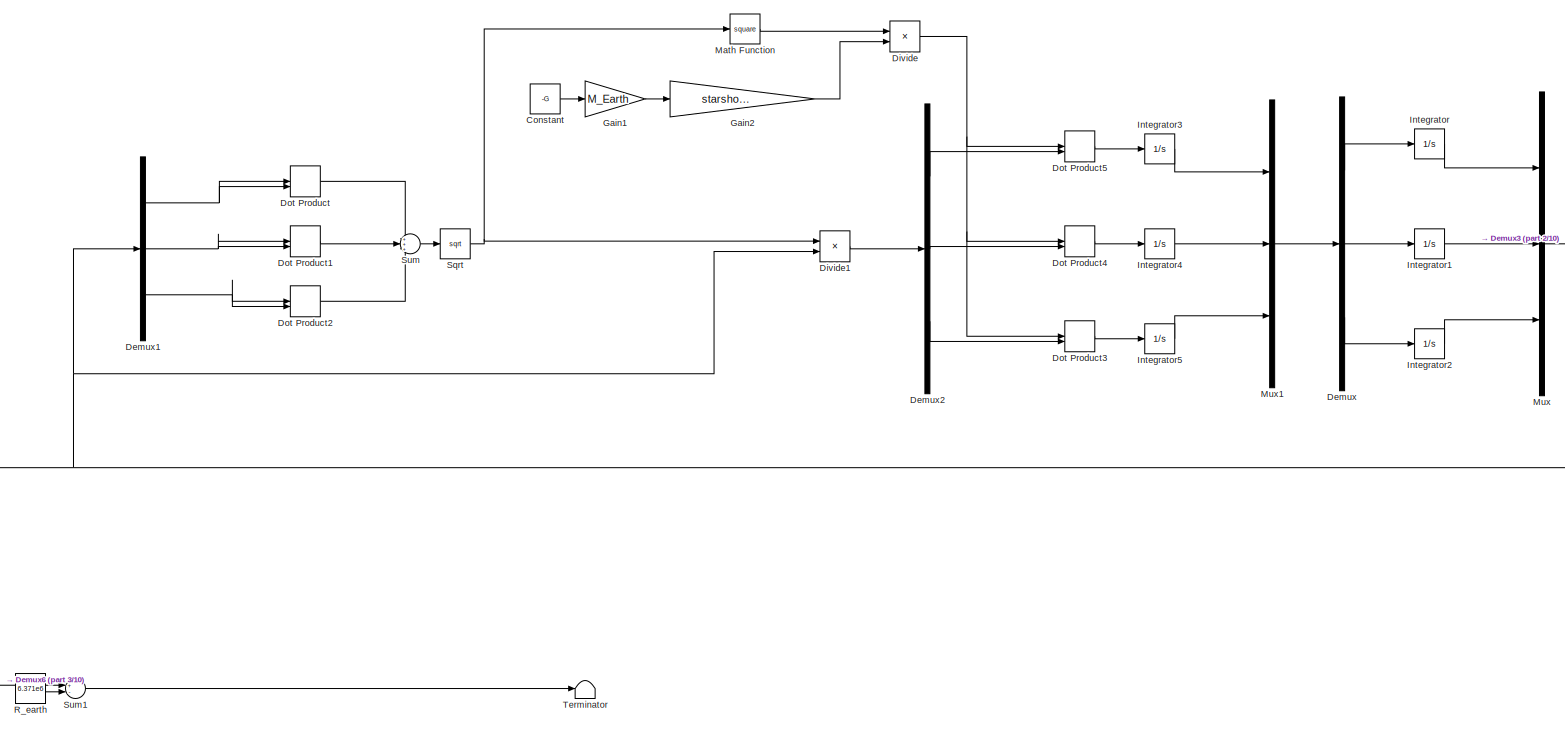
[diagram: root canvas - part 1/10, top left region]
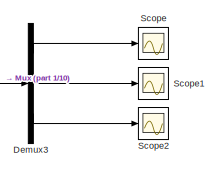
[diagram: root canvas - part 2/10, top center region]
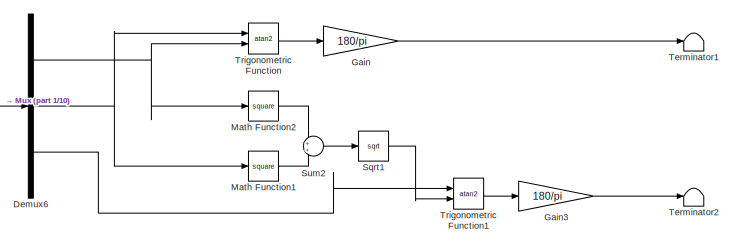
[diagram: root canvas - part 3/10, middle left region]
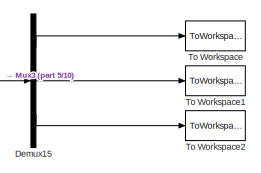
[diagram: root canvas - part 4/10, middle right region]
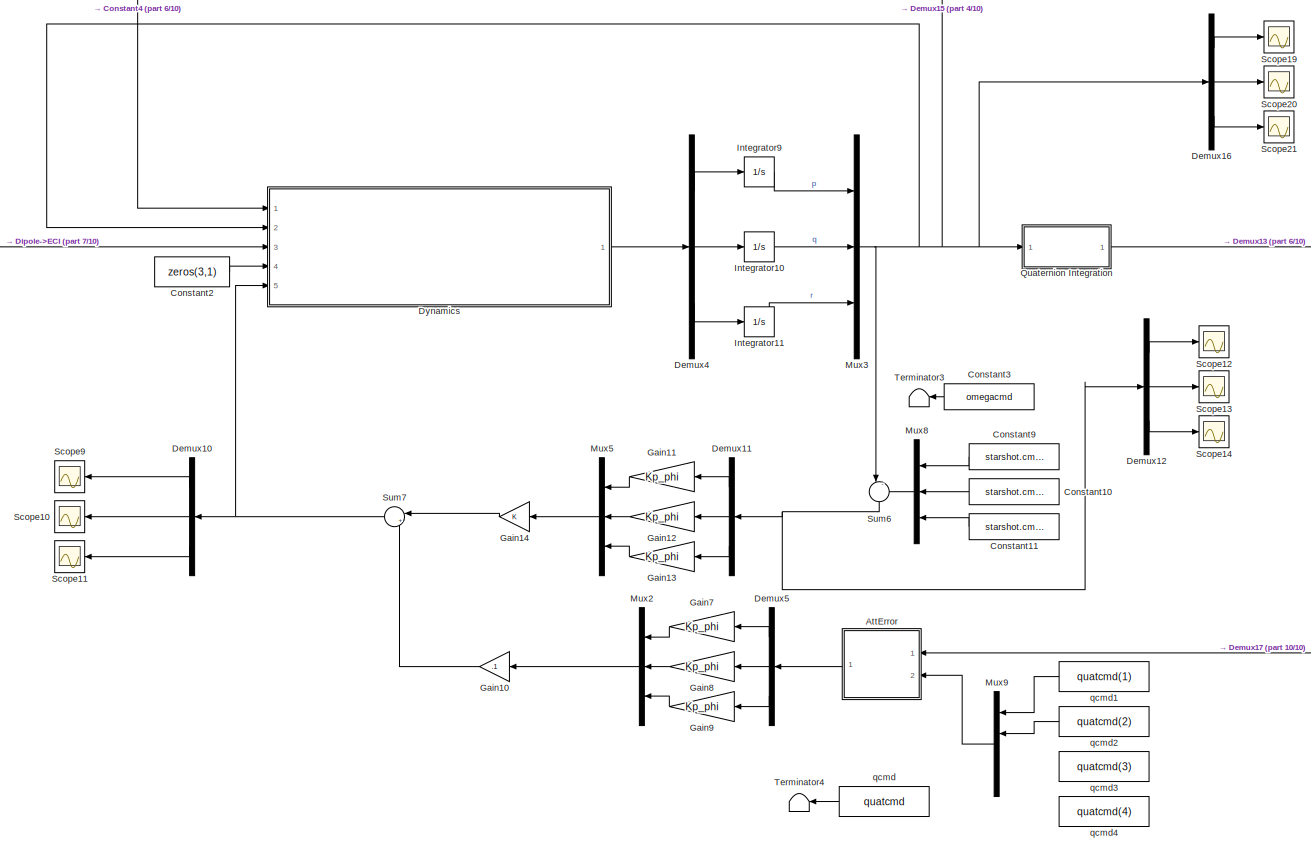
[diagram: root canvas - part 5/10, bottom right region]
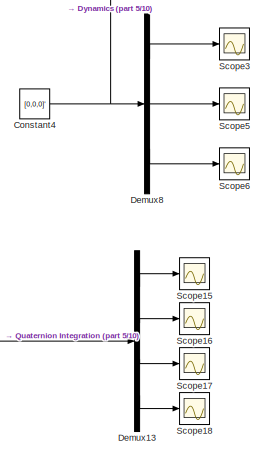
[diagram: root canvas - part 6/10, bottom right region]
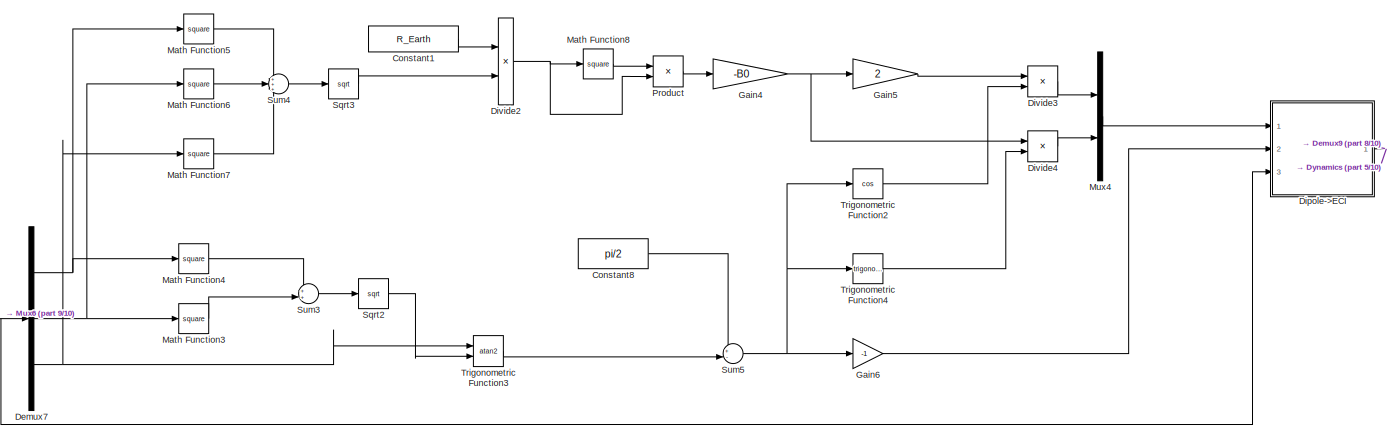
[diagram: root canvas - part 7/10, bottom left region]
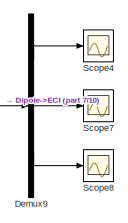
[diagram: root canvas - part 8/10, bottom center region]
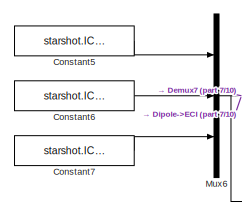
[diagram: root canvas - part 9/10, bottom left region]
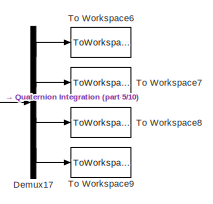
[diagram: root canvas - part 10/10, bottom right region]
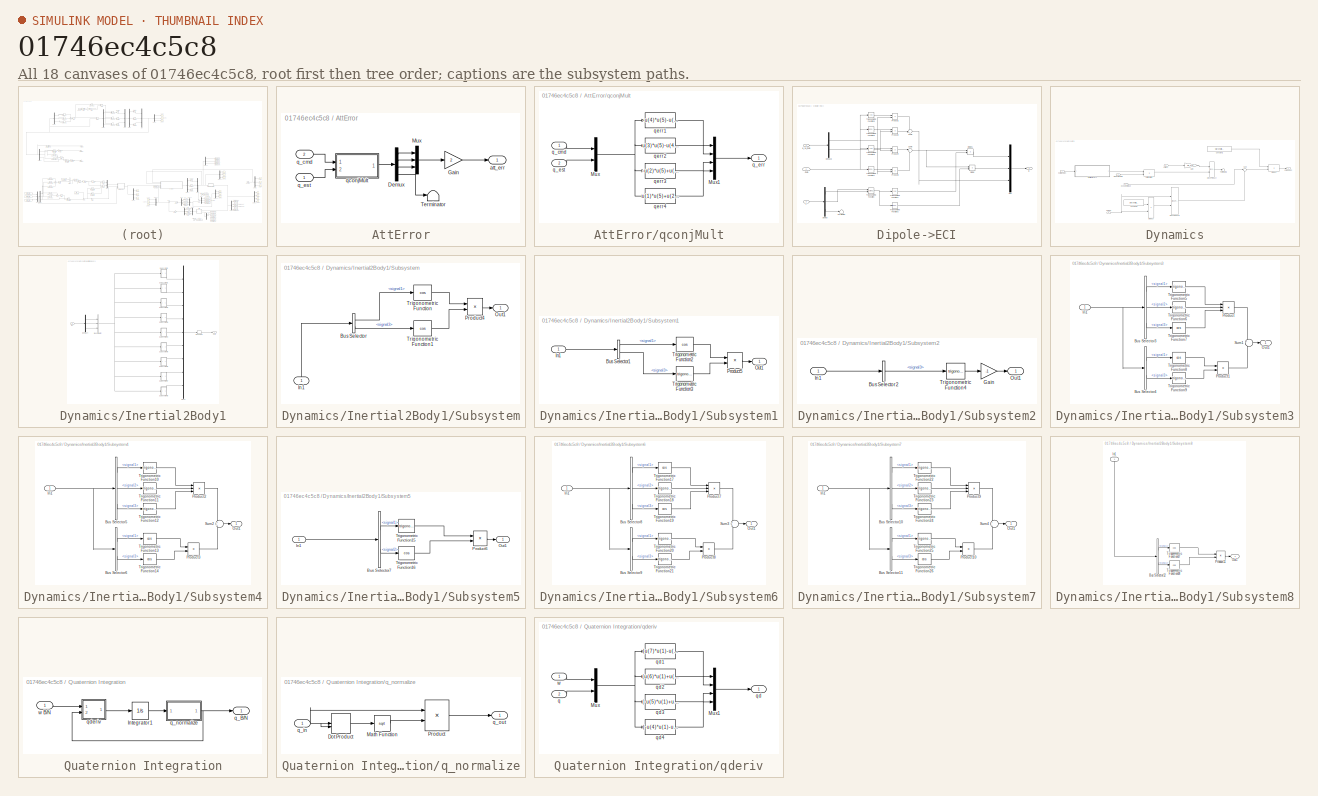
[diagram: thumbnail index - all 18 canvases of the model, root first then tree order]
MODEL slx_01746ec4c5c8
KIND model
CONFIG AbsTol = auto
CONFIG EnableMultiTasking = off
CONFIG FixedStep = auto
CONFIG MaxStep = auto
CONFIG MinStep = auto
CONFIG RelTol = 1e-3
CONFIG SampleTimeConstraint = Unconstrained
CONFIG Solver = VariableStepAuto
CONFIG SolverName = VariableStepAuto
CONFIG StartTime = 0.0
CONFIG StopTime = 500
BLOCK [SubSystem] AttError
  Ports = [2, 1]
  RequestExecContextInheritance = off
  Variant = off
BLOCK [Demux] AttError/Demux
  Ports = [1, 4]
BLOCK [Gain] AttError/Gain
  Gain = 2
BLOCK [Mux] AttError/Mux
  DisplayOption = bar
  Inputs = 3
  Ports = [3, 1]
BLOCK [Terminator] AttError/Terminator
BLOCK [Outport] AttError/att_err
  IconDisplay = Port number
BLOCK [Inport] AttError/q_cmd
  IconDisplay = Port number
  Port = 2
  PortDimensions = 4
BLOCK [Inport] AttError/q_est
  IconDisplay = Port number
  PortDimensions = 4
BLOCK [SubSystem] AttError/qconjMult
  Ports = [2, 1]
  RequestExecContextInheritance = off
  Variant = off
BLOCK [Mux] AttError/qconjMult/Mux
  DisplayOption = bar
  Inputs = 2
  Ports = [2, 1]
BLOCK [Mux] AttError/qconjMult/Mux1
  DisplayOption = bar
  Ports = [4, 1]
BLOCK [Inport] AttError/qconjMult/q_cmd
  IconDisplay = Port number
BLOCK [Outport] AttError/qconjMult/q_err
  IconDisplay = Port number
BLOCK [Inport] AttError/qconjMult/q_est
  IconDisplay = Port number
  Port = 2
BLOCK [Fcn] AttError/qconjMult/qerr1
  Expr = -u(4)*u(5)-u(3)*u(6)+u(2)*u(7)+u(1)*u(8)
BLOCK [Fcn] AttError/qconjMult/qerr2
  Expr = u(3)*u(5)-u(4)*u(6)-u(1)*u(7)+u(2)*u(8)
BLOCK [Fcn] AttError/qconjMult/qerr3
  Expr = -u(2)*u(5)+u(1)*u(6)-u(4)*u(7)+u(3)*u(8)
BLOCK [Fcn] AttError/qconjMult/qerr4
  Expr = u(1)*u(5)+u(2)*u(6)+u(3)*u(7)+u(4)*u(8)
BLOCK [Constant] Constant
  Value = -G
BLOCK [Constant] Constant1
  Value = R_Earth
BLOCK [Constant] Constant10
  Value = starshot.cmd.q
BLOCK [Constant] Constant11
  Value = starshot.cmd.r
BLOCK [Constant] Constant2
  Value = zeros(3,1)
BLOCK [Constant] Constant3
  Value = omegacmd
BLOCK [Constant] Constant4
  Value = [0,0,0]'
BLOCK [Constant] Constant5
  Value = starshot.IC.x
BLOCK [Constant] Constant6
  Value = starshot.IC.y
BLOCK [Constant] Constant7
  Value = starshot.IC.z
BLOCK [Constant] Constant8
  Value = pi/2
BLOCK [Constant] Constant9
  Value = starshot.cmd.p
BLOCK [Demux] Demux
  DisplayOption = bar
  Outputs = 3
  Ports = [1, 3]
BLOCK [Demux] Demux1
  DisplayOption = bar
  Outputs = 3
  Ports = [1, 3]
BLOCK [Demux] Demux10
  DisplayOption = bar
  Outputs = 3
  Ports = [1, 3]
BLOCK [Demux] Demux11
  DisplayOption = bar
  Outputs = 3
  Ports = [1, 3]
BLOCK [Demux] Demux12
  DisplayOption = bar
  Outputs = 3
  Ports = [1, 3]
BLOCK [Demux] Demux13
  DisplayOption = bar
  Ports = [1, 4]
BLOCK [Demux] Demux15
  DisplayOption = bar
  Outputs = 3
  Ports = [1, 3]
BLOCK [Demux] Demux16
  DisplayOption = bar
  Outputs = 3
  Ports = [1, 3]
BLOCK [Demux] Demux17
  DisplayOption = bar
  Ports = [1, 4]
BLOCK [Demux] Demux2
  DisplayOption = bar
  Outputs = 3
  Ports = [1, 3]
BLOCK [Demux] Demux3
  DisplayOption = bar
  Outputs = 3
  Ports = [1, 3]
BLOCK [Demux] Demux4
  DisplayOption = bar
  Outputs = 3
  Ports = [1, 3]
BLOCK [Demux] Demux5
  DisplayOption = bar
  Outputs = 3
  Ports = [1, 3]
BLOCK [Demux] Demux6
  DisplayOption = bar
  Outputs = 3
  Ports = [1, 3]
BLOCK [Demux] Demux7
  DisplayOption = bar
  Outputs = 3
  Ports = [1, 3]
BLOCK [Demux] Demux8
  DisplayOption = bar
  Outputs = 3
  Ports = [1, 3]
BLOCK [Demux] Demux9
  DisplayOption = bar
  Outputs = 3
  Ports = [1, 3]
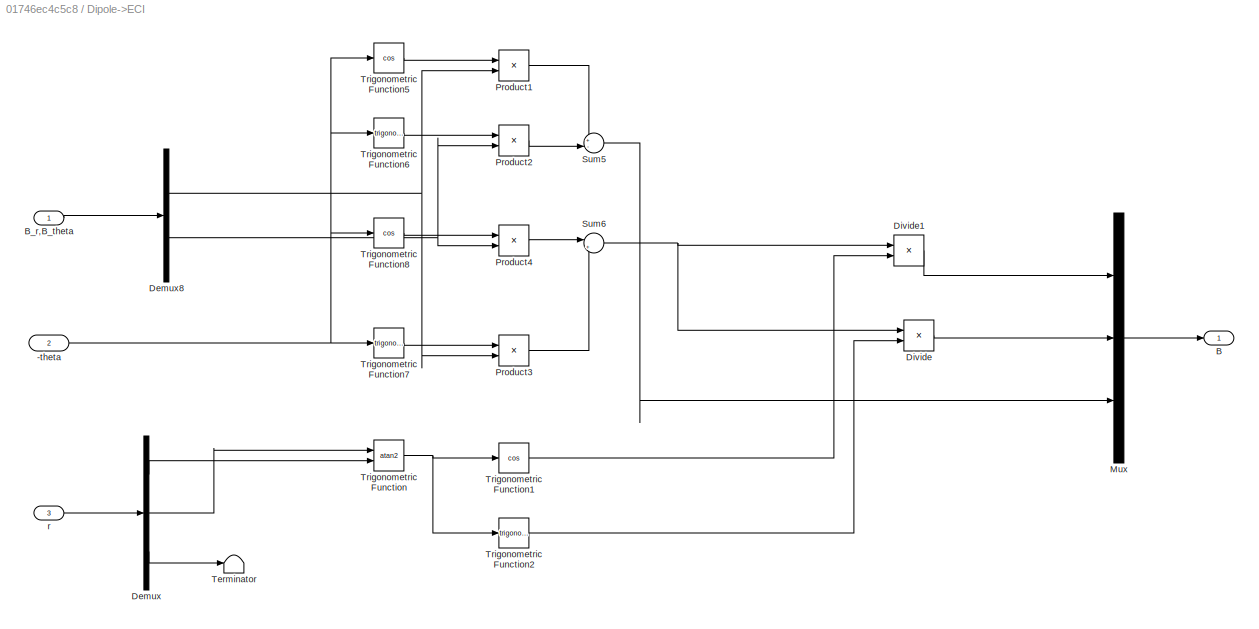
BLOCK [SubSystem] Dipole->ECI
  Ports = [3, 1]
  RequestExecContextInheritance = off
  Variant = off
BLOCK [Inport] Dipole->ECI/-theta
  IconDisplay = Port number
  Port = 2
BLOCK [Outport] Dipole->ECI/B
  IconDisplay = Port number
BLOCK [Inport] Dipole->ECI/B_r,B_theta
  IconDisplay = Port number
BLOCK [Demux] Dipole->ECI/Demux
  DisplayOption = bar
  Outputs = 3
  Ports = [1, 3]
BLOCK [Demux] Dipole->ECI/Demux8
  DisplayOption = bar
  Outputs = 2
  Ports = [1, 2]
BLOCK [Product] Dipole->ECI/Divide
  InputSameDT = off
  Inputs = **
  OutDataTypeStr = Inherit: Inherit via internal rule
  Ports = [2, 1]
  RndMeth = Floor
  SaturateOnIntegerOverflow = off
BLOCK [Product] Dipole->ECI/Divide1
  InputSameDT = off
  Inputs = **
  OutDataTypeStr = Inherit: Inherit via internal rule
  Ports = [2, 1]
  RndMeth = Floor
  SaturateOnIntegerOverflow = off
BLOCK [Mux] Dipole->ECI/Mux
  DisplayOption = bar
  Inputs = 3
  Ports = [3, 1]
BLOCK [Product] Dipole->ECI/Product1
  InputSameDT = off
  OutDataTypeStr = Inherit: Inherit via internal rule
  Ports = [2, 1]
  RndMeth = Floor
  SaturateOnIntegerOverflow = off
BLOCK [Product] Dipole->ECI/Product2
  InputSameDT = off
  OutDataTypeStr = Inherit: Inherit via internal rule
  Ports = [2, 1]
  RndMeth = Floor
  SaturateOnIntegerOverflow = off
BLOCK [Product] Dipole->ECI/Product3
  InputSameDT = off
  OutDataTypeStr = Inherit: Inherit via internal rule
  Ports = [2, 1]
  RndMeth = Floor
  SaturateOnIntegerOverflow = off
BLOCK [Product] Dipole->ECI/Product4
  InputSameDT = off
  OutDataTypeStr = Inherit: Inherit via internal rule
  Ports = [2, 1]
  RndMeth = Floor
  SaturateOnIntegerOverflow = off
BLOCK [Sum] Dipole->ECI/Sum5
  IconShape = round
  InputSameDT = off
  Inputs = +-|
  OutDataTypeStr = Inherit: Inherit via internal rule
  Ports = [2, 1]
  SaturateOnIntegerOverflow = off
BLOCK [Sum] Dipole->ECI/Sum6
  IconShape = round
  InputSameDT = off
  Inputs = |++
  OutDataTypeStr = Inherit: Inherit via internal rule
  Ports = [2, 1]
  SaturateOnIntegerOverflow = off
BLOCK [Terminator] Dipole->ECI/Terminator
BLOCK [Trigonometry] Dipole->ECI/Trigonometric Function
  Operator = atan2
  Ports = [2, 1]
BLOCK [Trigonometry] Dipole->ECI/Trigonometric Function1
  Operator = cos
  Ports = [1, 1]
BLOCK [Trigonometry] Dipole->ECI/Trigonometric Function2
  Ports = [1, 1]
BLOCK [Trigonometry] Dipole->ECI/Trigonometric Function5
  Operator = cos
  Ports = [1, 1]
BLOCK [Trigonometry] Dipole->ECI/Trigonometric Function6
  Ports = [1, 1]
BLOCK [Trigonometry] Dipole->ECI/Trigonometric Function7
  Ports = [1, 1]
BLOCK [Trigonometry] Dipole->ECI/Trigonometric Function8
  Operator = cos
  Ports = [1, 1]
BLOCK [Inport] Dipole->ECI/r
  IconDisplay = Port number
  Port = 3
BLOCK [Product] Divide
  InputSameDT = off
  Inputs = /*
  OutDataTypeStr = Inherit: Inherit via internal rule
  Ports = [2, 1]
  RndMeth = Floor
  SaturateOnIntegerOverflow = off
BLOCK [Product] Divide1
  InputSameDT = off
  Inputs = /*
  OutDataTypeStr = Inherit: Inherit via internal rule
  Ports = [2, 1]
  RndMeth = Floor
  SaturateOnIntegerOverflow = off
BLOCK [Product] Divide2
  InputSameDT = off
  Inputs = */
  OutDataTypeStr = Inherit: Inherit via internal rule
  Ports = [2, 1]
  RndMeth = Floor
  SaturateOnIntegerOverflow = off
BLOCK [Product] Divide3
  InputSameDT = off
  Inputs = **
  OutDataTypeStr = Inherit: Inherit via internal rule
  Ports = [2, 1]
  RndMeth = Floor
  SaturateOnIntegerOverflow = off
BLOCK [Product] Divide4
  InputSameDT = off
  Inputs = **
  OutDataTypeStr = Inherit: Inherit via internal rule
  Ports = [2, 1]
  RndMeth = Floor
  SaturateOnIntegerOverflow = off
BLOCK [DotProduct] Dot Product
  OutDataTypeStr = Inherit: Inherit via internal rule
BLOCK [DotProduct] Dot Product1
  OutDataTypeStr = Inherit: Inherit via internal rule
BLOCK [DotProduct] Dot Product2
  OutDataTypeStr = Inherit: Inherit via internal rule
BLOCK [DotProduct] Dot Product3
  OutDataTypeStr = Inherit: Inherit via internal rule
BLOCK [DotProduct] Dot Product4
  OutDataTypeStr = Inherit: Inherit via internal rule
BLOCK [DotProduct] Dot Product5
  OutDataTypeStr = Inherit: Inherit via internal rule
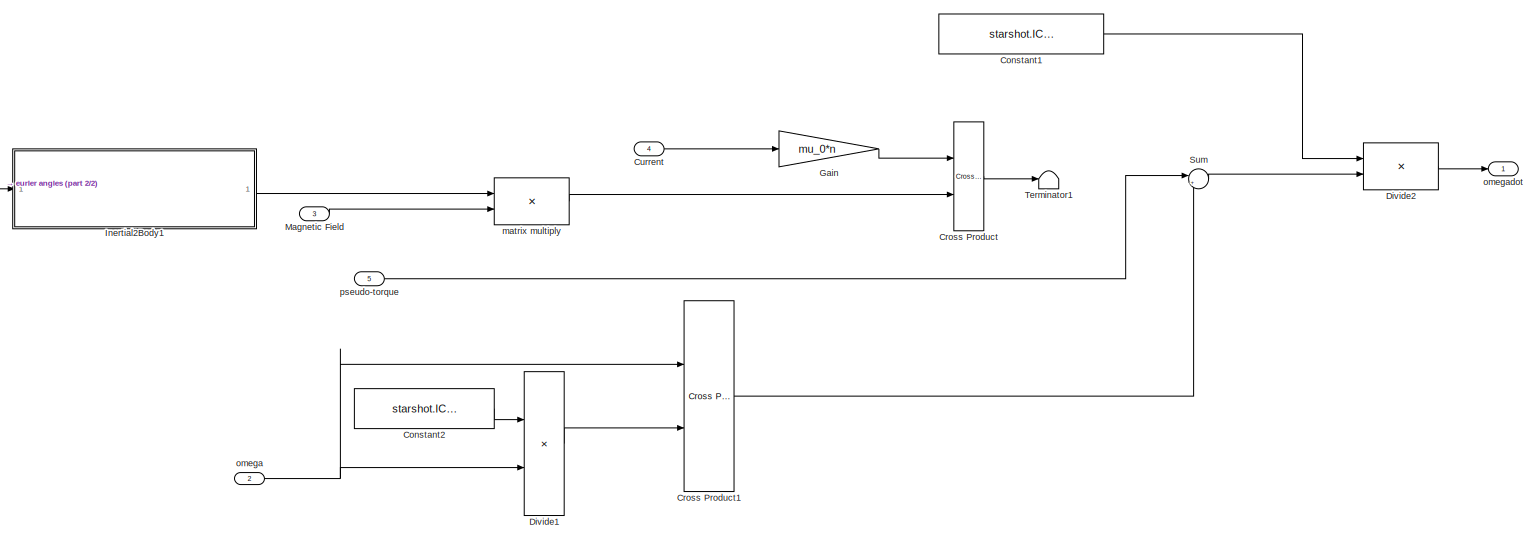
[diagram: Dynamics - part 1/2, most of the canvas]
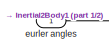
[diagram: Dynamics - part 2/2, middle left region]
BLOCK [SubSystem] Dynamics
  Ports = [5, 1]
  RequestExecContextInheritance = off
  Variant = off
BLOCK [Constant] Dynamics/Constant1
  Value = starshot.IC.massproperties.Iinv
  VectorParams1D = off
BLOCK [Constant] Dynamics/Constant2
  Value = starshot.IC.massproperties.I
  VectorParams1D = off
BLOCK [Reference] Dynamics/Cross Product  REF=vrlib/Utilities/Cross Product
  Ports = [2, 1]
  SourceBlock = vrlib/Utilities/Cross Product
  SourceProductBaseCode = VR
  SourceProductName = Simulink 3D Animation
  SourceType = Cross Product
BLOCK [Reference] Dynamics/Cross Product1  REF=vrlib/Utilities/Cross Product
  Ports = [2, 1]
  SourceBlock = vrlib/Utilities/Cross Product
  SourceProductBaseCode = VR
  SourceProductName = Simulink 3D Animation
  SourceType = Cross Product
BLOCK [Inport] Dynamics/Current 
  IconDisplay = Port number
  Port = 4
BLOCK [Product] Dynamics/Divide1
  InputSameDT = off
  Inputs = **
  Multiplication = Matrix(*)
  OutDataTypeStr = Inherit: Inherit via internal rule
  Ports = [2, 1]
  RndMeth = Floor
  SaturateOnIntegerOverflow = off
BLOCK [Product] Dynamics/Divide2
  InputSameDT = off
  Inputs = **
  Multiplication = Matrix(*)
  OutDataTypeStr = Inherit: Inherit via internal rule
  Ports = [2, 1]
  RndMeth = Floor
  SaturateOnIntegerOverflow = off
BLOCK [Gain] Dynamics/Gain
  Gain = mu_0*n
  OutDataTypeStr = Inherit: Inherit via internal rule
  ParamDataTypeStr = Inherit: Inherit via internal rule
  SaturateOnIntegerOverflow = off
BLOCK [SubSystem] Dynamics/Inertial2Body1
  Ports = [1, 1]
  RequestExecContextInheritance = off
  Variant = off
BLOCK [BusCreator] Dynamics/Inertial2Body1/Bus Creator
  DisplayOption = bar
  InheritFromInputs = on
  Inputs = 3
  Ports = [3, 1]
BLOCK [Demux] Dynamics/Inertial2Body1/Demux4
  DisplayOption = bar
  Outputs = 3
  Ports = [1, 3]
BLOCK [Inport] Dynamics/Inertial2Body1/In1
  IconDisplay = Port number
BLOCK [Mux] Dynamics/Inertial2Body1/Mux3
  DisplayOption = bar
  Inputs = 9
  Ports = [9, 1]
BLOCK [Outport] Dynamics/Inertial2Body1/Out1
  IconDisplay = Port number
BLOCK [Reshape] Dynamics/Inertial2Body1/Reshape
  OutputDimensionality = Customize
  OutputDimensions = [3,3]
  Ports = [1, 1]
BLOCK [SubSystem] Dynamics/Inertial2Body1/Subsystem
  Ports = [1, 1]
  RequestExecContextInheritance = off
  Variant = off
BLOCK [BusSelector] Dynamics/Inertial2Body1/Subsystem/Bus Selector
  OutputAsBus = off
  OutputSignals = signal1,signal3
  Ports = [1, 2]
BLOCK [Inport] Dynamics/Inertial2Body1/Subsystem/In1
  IconDisplay = Port number
BLOCK [Outport] Dynamics/Inertial2Body1/Subsystem/Out1
  IconDisplay = Port number
BLOCK [Product] Dynamics/Inertial2Body1/Subsystem/Product4
  InputSameDT = off
  OutDataTypeStr = Inherit: Inherit via internal rule
  Ports = [2, 1]
  RndMeth = Floor
  SaturateOnIntegerOverflow = off
BLOCK [Trigonometry] Dynamics/Inertial2Body1/Subsystem/Trigonometric Function
  Operator = cos
  Ports = [1, 1]
BLOCK [Trigonometry] Dynamics/Inertial2Body1/Subsystem/Trigonometric Function1
  Operator = cos
  Ports = [1, 1]
BLOCK [SubSystem] Dynamics/Inertial2Body1/Subsystem1
  Ports = [1, 1]
  RequestExecContextInheritance = off
  Variant = off
BLOCK [BusSelector] Dynamics/Inertial2Body1/Subsystem1/Bus Selector1
  OutputAsBus = off
  OutputSignals = signal1,signal3
  Ports = [1, 2]
BLOCK [Inport] Dynamics/Inertial2Body1/Subsystem1/In1
  IconDisplay = Port number
BLOCK [Outport] Dynamics/Inertial2Body1/Subsystem1/Out1
  IconDisplay = Port number
BLOCK [Product] Dynamics/Inertial2Body1/Subsystem1/Product5
  InputSameDT = off
  OutDataTypeStr = Inherit: Inherit via internal rule
  Ports = [2, 1]
  RndMeth = Floor
  SaturateOnIntegerOverflow = off
BLOCK [Trigonometry] Dynamics/Inertial2Body1/Subsystem1/Trigonometric Function2
  Operator = cos
  Ports = [1, 1]
BLOCK [Trigonometry] Dynamics/Inertial2Body1/Subsystem1/Trigonometric Function3
  Ports = [1, 1]
BLOCK [SubSystem] Dynamics/Inertial2Body1/Subsystem2
  Ports = [1, 1]
  RequestExecContextInheritance = off
  Variant = off
BLOCK [BusSelector] Dynamics/Inertial2Body1/Subsystem2/Bus Selector2
  OutputAsBus = off
  OutputSignals = signal3
  Ports = [1, 1]
BLOCK [Gain] Dynamics/Inertial2Body1/Subsystem2/Gain
  Gain = -1
  OutDataTypeStr = Inherit: Inherit via internal rule
  ParamDataTypeStr = Inherit: Inherit via internal rule
  SaturateOnIntegerOverflow = off
BLOCK [Inport] Dynamics/Inertial2Body1/Subsystem2/In1
  IconDisplay = Port number
BLOCK [Outport] Dynamics/Inertial2Body1/Subsystem2/Out1
  IconDisplay = Port number
BLOCK [Trigonometry] Dynamics/Inertial2Body1/Subsystem2/Trigonometric Function4
  Ports = [1, 1]
BLOCK [SubSystem] Dynamics/Inertial2Body1/Subsystem3
  Ports = [1, 1]
  RequestExecContextInheritance = off
  Variant = off
BLOCK [BusSelector] Dynamics/Inertial2Body1/Subsystem3/Bus Selector3
  OutputAsBus = off
  OutputSignals = signal1,signal2,signal3
  Ports = [1, 3]
BLOCK [BusSelector] Dynamics/Inertial2Body1/Subsystem3/Bus Selector4
  OutputAsBus = off
  OutputSignals = signal1,signal3
  Ports = [1, 2]
BLOCK [Inport] Dynamics/Inertial2Body1/Subsystem3/In1
  IconDisplay = Port number
BLOCK [Outport] Dynamics/Inertial2Body1/Subsystem3/Out1
  IconDisplay = Port number
BLOCK [Product] Dynamics/Inertial2Body1/Subsystem3/Product
  InputSameDT = off
  Inputs = 3
  OutDataTypeStr = Inherit: Inherit via internal rule
  Ports = [3, 1]
  RndMeth = Floor
  SaturateOnIntegerOverflow = off
BLOCK [Product] Dynamics/Inertial2Body1/Subsystem3/Product1
  InputSameDT = off
  OutDataTypeStr = Inherit: Inherit via internal rule
  Ports = [2, 1]
  RndMeth = Floor
  SaturateOnIntegerOverflow = off
BLOCK [Sum] Dynamics/Inertial2Body1/Subsystem3/Sum1
  IconShape = round
  InputSameDT = off
  Inputs = +-
  OutDataTypeStr = Inherit: Inherit via internal rule
  Ports = [2, 1]
  SaturateOnIntegerOverflow = off
BLOCK [Trigonometry] Dynamics/Inertial2Body1/Subsystem3/Trigonometric Function5
  Ports = [1, 1]
BLOCK [Trigonometry] Dynamics/Inertial2Body1/Subsystem3/Trigonometric Function6
  Ports = [1, 1]
BLOCK [Trigonometry] Dynamics/Inertial2Body1/Subsystem3/Trigonometric Function7
  Operator = cos
  Ports = [1, 1]
BLOCK [Trigonometry] Dynamics/Inertial2Body1/Subsystem3/Trigonometric Function8
  Operator = cos
  Ports = [1, 1]
BLOCK [Trigonometry] Dynamics/Inertial2Body1/Subsystem3/Trigonometric Function9
  Ports = [1, 1]
BLOCK [SubSystem] Dynamics/Inertial2Body1/Subsystem4
  Ports = [1, 1]
  RequestExecContextInheritance = off
  Variant = off
BLOCK [BusSelector] Dynamics/Inertial2Body1/Subsystem4/Bus Selector5
  OutputAsBus = off
  OutputSignals = signal1,signal2,signal3
  Ports = [1, 3]
BLOCK [BusSelector] Dynamics/Inertial2Body1/Subsystem4/Bus Selector6
  OutputAsBus = off
  OutputSignals = signal1,signal3
  Ports = [1, 2]
BLOCK [Inport] Dynamics/Inertial2Body1/Subsystem4/In1
  IconDisplay = Port number
BLOCK [Outport] Dynamics/Inertial2Body1/Subsystem4/Out1
  IconDisplay = Port number
BLOCK [Product] Dynamics/Inertial2Body1/Subsystem4/Product2
  InputSameDT = off
  Inputs = 3
  OutDataTypeStr = Inherit: Inherit via internal rule
  Ports = [3, 1]
  RndMeth = Floor
  SaturateOnIntegerOverflow = off
BLOCK [Product] Dynamics/Inertial2Body1/Subsystem4/Product3
  InputSameDT = off
  OutDataTypeStr = Inherit: Inherit via internal rule
  Ports = [2, 1]
  RndMeth = Floor
  SaturateOnIntegerOverflow = off
BLOCK [Sum] Dynamics/Inertial2Body1/Subsystem4/Sum2
  IconShape = round
  InputSameDT = off
  OutDataTypeStr = Inherit: Inherit via internal rule
  Ports = [2, 1]
  SaturateOnIntegerOverflow = off
BLOCK [Trigonometry] Dynamics/Inertial2Body1/Subsystem4/Trigonometric Function10
  Ports = [1, 1]
BLOCK [Trigonometry] Dynamics/Inertial2Body1/Subsystem4/Trigonometric Function11
  Ports = [1, 1]
BLOCK [Trigonometry] Dynamics/Inertial2Body1/Subsystem4/Trigonometric Function12
  Ports = [1, 1]
BLOCK [Trigonometry] Dynamics/Inertial2Body1/Subsystem4/Trigonometric Function13
  Operator = cos
  Ports = [1, 1]
BLOCK [Trigonometry] Dynamics/Inertial2Body1/Subsystem4/Trigonometric Function14
  Operator = cos
  Ports = [1, 1]
BLOCK [SubSystem] Dynamics/Inertial2Body1/Subsystem5
  Ports = [1, 1]
  RequestExecContextInheritance = off
  Variant = off
BLOCK [BusSelector] Dynamics/Inertial2Body1/Subsystem5/Bus Selector7
  OutputAsBus = off
  OutputSignals = signal1,signal2
  Ports = [1, 2]
BLOCK [Inport] Dynamics/Inertial2Body1/Subsystem5/In1
  IconDisplay = Port number
BLOCK [Outport] Dynamics/Inertial2Body1/Subsystem5/Out1
  IconDisplay = Port number
BLOCK [Product] Dynamics/Inertial2Body1/Subsystem5/Product6
  InputSameDT = off
  OutDataTypeStr = Inherit: Inherit via internal rule
  Ports = [2, 1]
  RndMeth = Floor
  SaturateOnIntegerOverflow = off
BLOCK [Trigonometry] Dynamics/Inertial2Body1/Subsystem5/Trigonometric Function15
  Ports = [1, 1]
BLOCK [Trigonometry] Dynamics/Inertial2Body1/Subsystem5/Trigonometric Function16
  Operator = cos
  Ports = [1, 1]
BLOCK [SubSystem] Dynamics/Inertial2Body1/Subsystem6
  Ports = [1, 1]
  RequestExecContextInheritance = off
  Variant = off
BLOCK [BusSelector] Dynamics/Inertial2Body1/Subsystem6/Bus Selector8
  OutputAsBus = off
  OutputSignals = signal1,signal2,signal3
  Ports = [1, 3]
BLOCK [BusSelector] Dynamics/Inertial2Body1/Subsystem6/Bus Selector9
  OutputAsBus = off
  OutputSignals = signal1,signal3
  Ports = [1, 2]
BLOCK [Inport] Dynamics/Inertial2Body1/Subsystem6/In1
  IconDisplay = Port number
BLOCK [Outport] Dynamics/Inertial2Body1/Subsystem6/Out1
  IconDisplay = Port number
BLOCK [Product] Dynamics/Inertial2Body1/Subsystem6/Product7
  InputSameDT = off
  Inputs = 3
  OutDataTypeStr = Inherit: Inherit via internal rule
  Ports = [3, 1]
  RndMeth = Floor
  SaturateOnIntegerOverflow = off
BLOCK [Product] Dynamics/Inertial2Body1/Subsystem6/Product8
  InputSameDT = off
  OutDataTypeStr = Inherit: Inherit via internal rule
  Ports = [2, 1]
  RndMeth = Floor
  SaturateOnIntegerOverflow = off
BLOCK [Sum] Dynamics/Inertial2Body1/Subsystem6/Sum3
  IconShape = round
  InputSameDT = off
  OutDataTypeStr = Inherit: Inherit via internal rule
  Ports = [2, 1]
  SaturateOnIntegerOverflow = off
BLOCK [Trigonometry] Dynamics/Inertial2Body1/Subsystem6/Trigonometric Function17
  Operator = cos
  Ports = [1, 1]
BLOCK [Trigonometry] Dynamics/Inertial2Body1/Subsystem6/Trigonometric Function18
  Ports = [1, 1]
BLOCK [Trigonometry] Dynamics/Inertial2Body1/Subsystem6/Trigonometric Function19
  Operator = cos
  Ports = [1, 1]
BLOCK [Trigonometry] Dynamics/Inertial2Body1/Subsystem6/Trigonometric Function20
  Ports = [1, 1]
BLOCK [Trigonometry] Dynamics/Inertial2Body1/Subsystem6/Trigonometric Function21
  Ports = [1, 1]
BLOCK [SubSystem] Dynamics/Inertial2Body1/Subsystem7
  Ports = [1, 1]
  RequestExecContextInheritance = off
  Variant = off
BLOCK [BusSelector] Dynamics/Inertial2Body1/Subsystem7/Bus Selector10
  OutputAsBus = off
  OutputSignals = signal1,signal2,signal3
  Ports = [1, 3]
BLOCK [BusSelector] Dynamics/Inertial2Body1/Subsystem7/Bus Selector11
  OutputAsBus = off
  OutputSignals = signal1,signal3
  Ports = [1, 2]
BLOCK [Inport] Dynamics/Inertial2Body1/Subsystem7/In1
  IconDisplay = Port number
BLOCK [Outport] Dynamics/Inertial2Body1/Subsystem7/Out1
  IconDisplay = Port number
BLOCK [Product] Dynamics/Inertial2Body1/Subsystem7/Product10
  InputSameDT = off
  OutDataTypeStr = Inherit: Inherit via internal rule
  Ports = [2, 1]
  RndMeth = Floor
  SaturateOnIntegerOverflow = off
BLOCK [Product] Dynamics/Inertial2Body1/Subsystem7/Product9
  InputSameDT = off
  Inputs = 3
  OutDataTypeStr = Inherit: Inherit via internal rule
  Ports = [3, 1]
  RndMeth = Floor
  SaturateOnIntegerOverflow = off
BLOCK [Sum] Dynamics/Inertial2Body1/Subsystem7/Sum4
  IconShape = round
  InputSameDT = off
  Inputs = +-
  OutDataTypeStr = Inherit: Inherit via internal rule
  Ports = [2, 1]
  SaturateOnIntegerOverflow = off
BLOCK [Trigonometry] Dynamics/Inertial2Body1/Subsystem7/Trigonometric Function22
  Ports = [1, 1]
BLOCK [Trigonometry] Dynamics/Inertial2Body1/Subsystem7/Trigonometric Function23
  Ports = [1, 1]
BLOCK [Trigonometry] Dynamics/Inertial2Body1/Subsystem7/Trigonometric Function24
  Ports = [1, 1]
BLOCK [Trigonometry] Dynamics/Inertial2Body1/Subsystem7/Trigonometric Function25
  Ports = [1, 1]
BLOCK [Trigonometry] Dynamics/Inertial2Body1/Subsystem7/Trigonometric Function26
  Operator = cos
  Ports = [1, 1]
BLOCK [SubSystem] Dynamics/Inertial2Body1/Subsystem8
  Ports = [1, 1]
  RequestExecContextInheritance = off
  Variant = off
BLOCK [BusSelector] Dynamics/Inertial2Body1/Subsystem8/Bus Selector12
  OutputAsBus = off
  OutputSignals = signal1,signal2
  Ports = [1, 2]
BLOCK [Inport] Dynamics/Inertial2Body1/Subsystem8/In1
  IconDisplay = Port number
BLOCK [Outport] Dynamics/Inertial2Body1/Subsystem8/Out1
  IconDisplay = Port number
BLOCK [Product] Dynamics/Inertial2Body1/Subsystem8/Product11
  InputSameDT = off
  OutDataTypeStr = Inherit: Inherit via internal rule
  Ports = [2, 1]
  RndMeth = Floor
  SaturateOnIntegerOverflow = off
BLOCK [Trigonometry] Dynamics/Inertial2Body1/Subsystem8/Trigonometric Function27
  Operator = cos
  Ports = [1, 1]
BLOCK [Trigonometry] Dynamics/Inertial2Body1/Subsystem8/Trigonometric Function28
  Operator = cos
  Ports = [1, 1]
BLOCK [Inport] Dynamics/Magnetic Field
  IconDisplay = Port number
  Port = 3
BLOCK [Sum] Dynamics/Sum
  IconShape = round
  InputSameDT = off
  Inputs = |+-
  OutDataTypeStr = Inherit: Inherit via internal rule
  Ports = [2, 1]
  SaturateOnIntegerOverflow = off
BLOCK [Terminator] Dynamics/Terminator1
BLOCK [Inport] Dynamics/eurler angles
  IconDisplay = Port number
BLOCK [Product] Dynamics/matrix multiply 
  InputSameDT = off
  Inputs = **
  Multiplication = Matrix(*)
  OutDataTypeStr = Inherit: Inherit via internal rule
  Ports = [2, 1]
  RndMeth = Floor
  SaturateOnIntegerOverflow = off
BLOCK [Inport] Dynamics/omega
  IconDisplay = Port number
  Port = 2
BLOCK [Outport] Dynamics/omegadot
  IconDisplay = Port number
BLOCK [Inport] Dynamics/pseudo-torque
  IconDisplay = Port number
  Port = 5
BLOCK [Gain] Gain
  Gain = 180/pi
  OutDataTypeStr = Inherit: Inherit via internal rule
  ParamDataTypeStr = Inherit: Inherit via internal rule
  SaturateOnIntegerOverflow = off
BLOCK [Gain] Gain1
  Gain = M_Earth
  OutDataTypeStr = Inherit: Inherit via internal rule
  ParamDataTypeStr = Inherit: Inherit via internal rule
  SaturateOnIntegerOverflow = off
BLOCK [Gain] Gain10
  Gain = .1
  OutDataTypeStr = Inherit: Inherit via internal rule
  ParamDataTypeStr = Inherit: Inherit via internal rule
  SaturateOnIntegerOverflow = off
BLOCK [Gain] Gain11
  Gain = Kp_phi
  OutDataTypeStr = Inherit: Inherit via internal rule
  ParamDataTypeStr = Inherit: Inherit via internal rule
  SaturateOnIntegerOverflow = off
BLOCK [Gain] Gain12
  Gain = Kp_phi
  OutDataTypeStr = Inherit: Inherit via internal rule
  ParamDataTypeStr = Inherit: Inherit via internal rule
  SaturateOnIntegerOverflow = off
BLOCK [Gain] Gain13
  Gain = Kp_phi
  OutDataTypeStr = Inherit: Inherit via internal rule
  ParamDataTypeStr = Inherit: Inherit via internal rule
  SaturateOnIntegerOverflow = off
BLOCK [Gain] Gain14
  OutDataTypeStr = Inherit: Inherit via internal rule
  ParamDataTypeStr = Inherit: Inherit via internal rule
  SaturateOnIntegerOverflow = off
BLOCK [Gain] Gain2
  Gain = starshot.IC.massproperties.m
  OutDataTypeStr = Inherit: Inherit via internal rule
  ParamDataTypeStr = Inherit: Inherit via internal rule
  SaturateOnIntegerOverflow = off
BLOCK [Gain] Gain3
  Gain = 180/pi
  OutDataTypeStr = Inherit: Inherit via internal rule
  ParamDataTypeStr = Inherit: Inherit via internal rule
  SaturateOnIntegerOverflow = off
BLOCK [Gain] Gain4
  Gain = -B0
  OutDataTypeStr = Inherit: Inherit via internal rule
  ParamDataTypeStr = Inherit: Inherit via internal rule
  SaturateOnIntegerOverflow = off
BLOCK [Gain] Gain5
  Gain = 2
  OutDataTypeStr = Inherit: Inherit via internal rule
  ParamDataTypeStr = Inherit: Inherit via internal rule
  SaturateOnIntegerOverflow = off
BLOCK [Gain] Gain6
  Gain = -1
  OutDataTypeStr = Inherit: Inherit via internal rule
  ParamDataTypeStr = Inherit: Inherit via internal rule
  SaturateOnIntegerOverflow = off
BLOCK [Gain] Gain7
  Gain = Kp_phi
  OutDataTypeStr = Inherit: Inherit via internal rule
  ParamDataTypeStr = Inherit: Inherit via internal rule
  SaturateOnIntegerOverflow = off
BLOCK [Gain] Gain8
  Gain = Kp_phi
  OutDataTypeStr = Inherit: Inherit via internal rule
  ParamDataTypeStr = Inherit: Inherit via internal rule
  SaturateOnIntegerOverflow = off
BLOCK [Gain] Gain9
  Gain = Kp_phi
  OutDataTypeStr = Inherit: Inherit via internal rule
  ParamDataTypeStr = Inherit: Inherit via internal rule
  SaturateOnIntegerOverflow = off
BLOCK [Integrator] Integrator
  InitialCondition = starshot.IC.x
  Ports = [1, 1]
BLOCK [Integrator] Integrator1
  InitialCondition = starshot.IC.y
  Ports = [1, 1]
BLOCK [Integrator] Integrator10
  InitialCondition = starshot.IC.q
  Ports = [1, 1]
BLOCK [Integrator] Integrator11
  InitialCondition = starshot.IC.r
  Ports = [1, 1]
BLOCK [Integrator] Integrator2
  InitialCondition = starshot.IC.z
  Ports = [1, 1]
BLOCK [Integrator] Integrator3
  InitialCondition = starshot.IC.xdot
  Ports = [1, 1]
BLOCK [Integrator] Integrator4
  InitialCondition = starshot.IC.ydot
  Ports = [1, 1]
BLOCK [Integrator] Integrator5
  InitialCondition = starshot.IC.zdot
  Ports = [1, 1]
BLOCK [Integrator] Integrator9
  InitialCondition = starshot.IC.p
  Ports = [1, 1]
BLOCK [Math] Math Function
  Operator = square
  Ports = [1, 1]
BLOCK [Math] Math Function1
  Operator = square
  Ports = [1, 1]
BLOCK [Math] Math Function2
  Operator = square
  Ports = [1, 1]
BLOCK [Math] Math Function3
  Operator = square
  Ports = [1, 1]
BLOCK [Math] Math Function4
  Operator = square
  Ports = [1, 1]
BLOCK [Math] Math Function5
  Operator = square
  Ports = [1, 1]
BLOCK [Math] Math Function6
  Operator = square
  Ports = [1, 1]
BLOCK [Math] Math Function7
  Operator = square
  Ports = [1, 1]
BLOCK [Math] Math Function8
  Operator = square
  Ports = [1, 1]
BLOCK [Mux] Mux
  DisplayOption = bar
  Inputs = 3
  Ports = [3, 1]
BLOCK [Mux] Mux1
  DisplayOption = bar
  Inputs = 3
  Ports = [3, 1]
BLOCK [Mux] Mux2
  DisplayOption = bar
  Inputs = 3
  Ports = [3, 1]
BLOCK [Mux] Mux3
  DisplayOption = bar
  Inputs = 3
  Ports = [3, 1]
BLOCK [Mux] Mux4
  DisplayOption = bar
  Inputs = 2
  Ports = [2, 1]
BLOCK [Mux] Mux5
  DisplayOption = bar
  Inputs = 3
  Ports = [3, 1]
BLOCK [Mux] Mux6
  DisplayOption = bar
  Inputs = 3
  Ports = [3, 1]
BLOCK [Mux] Mux8
  DisplayOption = bar
  Inputs = 3
  Ports = [3, 1]
BLOCK [Mux] Mux9
  DisplayOption = bar
  Ports = [4, 1]
BLOCK [Product] Product
  InputSameDT = off
  OutDataTypeStr = Inherit: Inherit via internal rule
  Ports = [2, 1]
  RndMeth = Floor
  SaturateOnIntegerOverflow = off
BLOCK [SubSystem] Quaternion Integration
  Ports = [1, 1]
  RequestExecContextInheritance = off
  Variant = off
BLOCK [Integrator] Quaternion Integration/Integrator1
  InitialCondition = q0
  Ports = [1, 1]
BLOCK [Outport] Quaternion Integration/q_B//N
  IconDisplay = Port number
BLOCK [SubSystem] Quaternion Integration/q_normalize
  Ports = [1, 1]
  RequestExecContextInheritance = off
  Variant = off
BLOCK [DotProduct] Quaternion Integration/q_normalize/Dot Product
  OutDataTypeStr = Inherit: Inherit via internal rule
BLOCK [Math] Quaternion Integration/q_normalize/Math Function
  Operator = sqrt
  Ports = [1, 1]
BLOCK [Product] Quaternion Integration/q_normalize/Product
  Inputs = */
  Ports = [2, 1]
  RndMeth = Floor
BLOCK [Inport] Quaternion Integration/q_normalize/q_in
  IconDisplay = Port number
  PortDimensions = 4
BLOCK [Outport] Quaternion Integration/q_normalize/q_out
  IconDisplay = Port number
BLOCK [SubSystem] Quaternion Integration/qderiv
  Ports = [2, 1]
  RequestExecContextInheritance = off
  Variant = off
BLOCK [Mux] Quaternion Integration/qderiv/Mux
  DisplayOption = bar
  Inputs = 2
  Ports = [2, 1]
BLOCK [Mux] Quaternion Integration/qderiv/Mux1
  DisplayOption = bar
  Ports = [4, 1]
BLOCK [Inport] Quaternion Integration/qderiv/q
  IconDisplay = Port number
  Port = 2
BLOCK [Outport] Quaternion Integration/qderiv/qd
  IconDisplay = Port number
BLOCK [Fcn] Quaternion Integration/qderiv/qd1
  Expr = (u(7)*u(1)-u(6)*u(2)+u(5)*u(3))/2
BLOCK [Fcn] Quaternion Integration/qderiv/qd2
  Expr = (u(6)*u(1)+u(7)*u(2)-u(4)*u(3))/2
BLOCK [Fcn] Quaternion Integration/qderiv/qd3
  Expr = (-u(5)*u(1)+u(4)*u(2)+u(7)*u(3))/2
BLOCK [Fcn] Quaternion Integration/qderiv/qd4
  Expr = (-u(4)*u(1)-u(5)*u(2)-u(6)*u(3))/2
BLOCK [Inport] Quaternion Integration/qderiv/w
  IconDisplay = Port number
BLOCK [Inport] Quaternion Integration/w B//N
  IconDisplay = Port number
BLOCK [Constant] R_earth
  Value = 6.371e6
BLOCK [Scope] Scope
  NumInputPorts = 1
  Ports = [1]
  ScopeSpecificationString = Simulink.scopes.TimeScopeBlockCfg('CurrentConfiguration', extmgr.ConfigurationSet(extmgr.Configuration('Core','General UI',true),extmgr.Configuration('Core','Source UI',true),extmgr.Configuration('Sources','WiredSimulink',true),extmgr.Configuration('Visuals','Time Domain',true,'SerializedDisplays',{struct('MinYLimReal','-6825378.18868','MaxYLimReal','8536153.13208','YLabelReal','','MinYLimMag','  ...<+1402ch>
BLOCK [Scope] Scope1
  NumInputPorts = 1
  Ports = [1]
  ScopeSpecificationString = Simulink.scopes.TimeScopeBlockCfg('CurrentConfiguration', extmgr.ConfigurationSet(extmgr.Configuration('Core','General UI',true),extmgr.Configuration('Core','Source UI',true),extmgr.Configuration('Sources','WiredSimulink',true,'DataLoggingVariableName','ScopeData1'),extmgr.Configuration('Visuals','Time Domain',true,'SerializedDisplays',{struct('MinYLimReal','-7607124.84143','MaxYLimReal','7601220....<+1442ch>
BLOCK [Scope] Scope10
  NumInputPorts = 1
  Ports = [1]
  ScopeSpecificationString = Simulink.scopes.TimeScopeBlockCfg('CurrentConfiguration', extmgr.ConfigurationSet(extmgr.Configuration('Core','General UI',true),extmgr.Configuration('Core','Source UI',true),extmgr.Configuration('Sources','WiredSimulink',true,'DataLoggingVariableName','ScopeData2'),extmgr.Configuration('Visuals','Time Domain',true,'SerializedDisplays',{struct('MinYLimReal','-0.03536','MaxYLimReal','0.00411','YLab...<+1368ch>
BLOCK [Scope] Scope11
  NumInputPorts = 1
  Ports = [1]
  ScopeSpecificationString = Simulink.scopes.TimeScopeBlockCfg('CurrentConfiguration', extmgr.ConfigurationSet(extmgr.Configuration('Core','General UI',true),extmgr.Configuration('Core','Source UI',true),extmgr.Configuration('Sources','WiredSimulink',true,'DataLoggingVariableName','ScopeData3'),extmgr.Configuration('Visuals','Time Domain',true,'SerializedDisplays',{struct('MinYLimReal','-0.00785','MaxYLimReal','0.07069','YLab...<+1396ch>
BLOCK [Scope] Scope12
  NumInputPorts = 1
  Ports = [1]
  ScopeSpecificationString = Simulink.scopes.TimeScopeBlockCfg('CurrentConfiguration', extmgr.ConfigurationSet(extmgr.Configuration('Core','General UI',true),extmgr.Configuration('Core','Source UI',true),extmgr.Configuration('Sources','WiredSimulink',true,'DataLoggingVariableName','ScopeData4'),extmgr.Configuration('Visuals','Time Domain',true,'SerializedDisplays',{struct('MinYLimReal','-0.35322','MaxYLimReal','0.03743','YLab...<+1395ch>
BLOCK [Scope] Scope13
  NumInputPorts = 1
  Ports = [1]
  ScopeSpecificationString = Simulink.scopes.TimeScopeBlockCfg('CurrentConfiguration', extmgr.ConfigurationSet(extmgr.Configuration('Core','General UI',true),extmgr.Configuration('Core','Source UI',true),extmgr.Configuration('Sources','WiredSimulink',true,'DataLoggingVariableName','ScopeData5'),extmgr.Configuration('Visuals','Time Domain',true,'SerializedDisplays',{struct('MinYLimReal','-0.35363','MaxYLimReal','0.04105','YLab...<+1395ch>
BLOCK [Scope] Scope14
  NumInputPorts = 1
  Ports = [1]
  ScopeSpecificationString = Simulink.scopes.TimeScopeBlockCfg('CurrentConfiguration', extmgr.ConfigurationSet(extmgr.Configuration('Core','General UI',true),extmgr.Configuration('Core','Source UI',true),extmgr.Configuration('Sources','WiredSimulink',true,'DataLoggingVariableName','ScopeData6'),extmgr.Configuration('Visuals','Time Domain',true,'SerializedDisplays',{struct('MinYLimReal','-0.07851','MaxYLimReal','0.70686','YLab...<+1396ch>
BLOCK [Scope] Scope15
  NumInputPorts = 1
  Ports = [1]
  ScopeSpecificationString = Simulink.scopes.TimeScopeBlockCfg('CurrentConfiguration', extmgr.ConfigurationSet(extmgr.Configuration('Core','General UI',true),extmgr.Configuration('Core','Source UI',true),extmgr.Configuration('Sources','WiredSimulink',true,'DataLoggingVariableName','ScopeData1'),extmgr.Configuration('Visuals','Time Domain',true,'SerializedDisplays',{struct('MinYLimReal','-0.01674','MaxYLimReal','0.01674','YLab...<+1397ch>
BLOCK [Scope] Scope16
  NumInputPorts = 1
  Ports = [1]
  ScopeSpecificationString = Simulink.scopes.TimeScopeBlockCfg('CurrentConfiguration', extmgr.ConfigurationSet(extmgr.Configuration('Core','General UI',true),extmgr.Configuration('Core','Source UI',true),extmgr.Configuration('Sources','WiredSimulink',true,'DataLoggingVariableName','ScopeData2'),extmgr.Configuration('Visuals','Time Domain',true,'SerializedDisplays',{struct('MinYLimReal','-0.01613','MaxYLimReal','0.01613','YLab...<+1397ch>
BLOCK [Scope] Scope17
  NumInputPorts = 1
  Ports = [1]
  ScopeSpecificationString = Simulink.scopes.TimeScopeBlockCfg('CurrentConfiguration', extmgr.ConfigurationSet(extmgr.Configuration('Core','General UI',true),extmgr.Configuration('Core','Source UI',true),extmgr.Configuration('Sources','WiredSimulink',true,'DataLoggingVariableName','ScopeData3'),extmgr.Configuration('Visuals','Time Domain',true,'SerializedDisplays',{struct('MinYLimReal','-1.24983','MaxYLimReal','1.24983','YLab...<+1396ch>
BLOCK [Scope] Scope18
  NumInputPorts = 1
  Ports = [1]
  ScopeSpecificationString = Simulink.scopes.TimeScopeBlockCfg('CurrentConfiguration', extmgr.ConfigurationSet(extmgr.Configuration('Core','General UI',true),extmgr.Configuration('Core','Source UI',true),extmgr.Configuration('Sources','WiredSimulink',true,'DataLoggingVariableName','ScopeData4'),extmgr.Configuration('Visuals','Time Domain',true,'SerializedDisplays',{struct('MinYLimReal','-1.24996','MaxYLimReal','1.25','YLabelR...<+1384ch>
BLOCK [Scope] Scope19
  NumInputPorts = 1
  Ports = [1]
  ScopeSpecificationString = Simulink.scopes.TimeScopeBlockCfg('CurrentConfiguration', extmgr.ConfigurationSet(extmgr.Configuration('Core','General UI',true),extmgr.Configuration('Core','Source UI',true),extmgr.Configuration('Sources','WiredSimulink',true,'DataLoggingVariableName','ScopeData1'),extmgr.Configuration('Visuals','Time Domain',true,'SerializedDisplays',{struct('MinYLimReal','-0.03743','MaxYLimReal','0.35322','YLab...<+1395ch>
BLOCK [Scope] Scope2
  NumInputPorts = 1
  Ports = [1]
  ScopeSpecificationString = Simulink.scopes.TimeScopeBlockCfg('CurrentConfiguration', extmgr.ConfigurationSet(extmgr.Configuration('Core','General UI',true),extmgr.Configuration('Core','Source UI',true),extmgr.Configuration('Sources','WiredSimulink',true,'DataLoggingVariableName','ScopeData2'),extmgr.Configuration('Visuals','Time Domain',true,'SerializedDisplays',{struct('MinYLimReal','-1.00000','MaxYLimReal','1.00000','YLab...<+1359ch>
BLOCK [Scope] Scope20
  NumInputPorts = 1
  Ports = [1]
  ScopeSpecificationString = Simulink.scopes.TimeScopeBlockCfg('CurrentConfiguration', extmgr.ConfigurationSet(extmgr.Configuration('Core','General UI',true),extmgr.Configuration('Core','Source UI',true),extmgr.Configuration('Sources','WiredSimulink',true,'DataLoggingVariableName','ScopeData2'),extmgr.Configuration('Visuals','Time Domain',true,'SerializedDisplays',{struct('MinYLimReal','-0.04105','MaxYLimReal','0.35363','YLab...<+1395ch>
BLOCK [Scope] Scope21
  NumInputPorts = 1
  Ports = [1]
  ScopeSpecificationString = Simulink.scopes.TimeScopeBlockCfg('CurrentConfiguration', extmgr.ConfigurationSet(extmgr.Configuration('Core','General UI',true),extmgr.Configuration('Core','Source UI',true),extmgr.Configuration('Sources','WiredSimulink',true,'DataLoggingVariableName','ScopeData3'),extmgr.Configuration('Visuals','Time Domain',true,'SerializedDisplays',{struct('MinYLimReal','-0.3927','MaxYLimReal','0.39266','YLabe...<+1391ch>
BLOCK [Scope] Scope3
  NumInputPorts = 1
  Ports = [1]
  ScopeSpecificationString = Simulink.scopes.TimeScopeBlockCfg('CurrentConfiguration', extmgr.ConfigurationSet(extmgr.Configuration('Core','General UI',true),extmgr.Configuration('Core','Source UI',true),extmgr.Configuration('Sources','WiredSimulink',true,'DataLoggingVariableName','ScopeData1'),extmgr.Configuration('Visuals','Time Domain',true,'SerializedDisplays',{struct('MinYLimReal','-1.00000','MaxYLimReal','1.00000','YLab...<+1395ch>
BLOCK [Scope] Scope4
  NumInputPorts = 1
  Ports = [1]
  ScopeSpecificationString = Simulink.scopes.TimeScopeBlockCfg('CurrentConfiguration', extmgr.ConfigurationSet(extmgr.Configuration('Core','General UI',true),extmgr.Configuration('Core','Source UI',true),extmgr.Configuration('Sources','WiredSimulink',true,'DataLoggingVariableName','ScopeData2'),extmgr.Configuration('Visuals','Time Domain',true,'SerializedDisplays',{struct('MinYLimReal','0.0000000000000000000004','MaxYLimReal'...<+1501ch>
BLOCK [Scope] Scope5
  NumInputPorts = 1
  Ports = [1]
  ScopeSpecificationString = Simulink.scopes.TimeScopeBlockCfg('CurrentConfiguration', extmgr.ConfigurationSet(extmgr.Configuration('Core','General UI',true),extmgr.Configuration('Core','Source UI',true),extmgr.Configuration('Sources','WiredSimulink',true,'DataLoggingVariableName','ScopeData2'),extmgr.Configuration('Visuals','Time Domain',true,'SerializedDisplays',{struct('MinYLimReal','-1.00000','MaxYLimReal','1.00000','YLab...<+1396ch>
BLOCK [Scope] Scope6
  NumInputPorts = 1
  Ports = [1]
  ScopeSpecificationString = Simulink.scopes.TimeScopeBlockCfg('CurrentConfiguration', extmgr.ConfigurationSet(extmgr.Configuration('Core','General UI',true),extmgr.Configuration('Core','Source UI',true),extmgr.Configuration('Sources','WiredSimulink',true,'DataLoggingVariableName','ScopeData3'),extmgr.Configuration('Visuals','Time Domain',true,'SerializedDisplays',{struct('MinYLimReal','-1.00000','MaxYLimReal','1.00000','YLab...<+1397ch>
BLOCK [Scope] Scope7
  NumInputPorts = 1
  Ports = [1]
  ScopeSpecificationString = Simulink.scopes.TimeScopeBlockCfg('CurrentConfiguration', extmgr.ConfigurationSet(extmgr.Configuration('Core','General UI',true),extmgr.Configuration('Core','Source UI',true),extmgr.Configuration('Sources','WiredSimulink',true,'DataLoggingVariableName','ScopeData5'),extmgr.Configuration('Visuals','Time Domain',true,'SerializedDisplays',{struct('MinYLimReal','-1.00000','MaxYLimReal','1.00000','YLab...<+1367ch>
BLOCK [Scope] Scope8
  NumInputPorts = 1
  Ports = [1]
  ScopeSpecificationString = Simulink.scopes.TimeScopeBlockCfg('CurrentConfiguration', extmgr.ConfigurationSet(extmgr.Configuration('Core','General UI',true),extmgr.Configuration('Core','Source UI',true),extmgr.Configuration('Sources','WiredSimulink',true,'DataLoggingVariableName','ScopeData6'),extmgr.Configuration('Visuals','Time Domain',true,'SerializedDisplays',{struct('MinYLimReal','-0.000034','MaxYLimReal','-0.000014','Y...<+1377ch>
BLOCK [Scope] Scope9
  NumInputPorts = 1
  Ports = [1]
  ScopeSpecificationString = Simulink.scopes.TimeScopeBlockCfg('CurrentConfiguration', extmgr.ConfigurationSet(extmgr.Configuration('Core','General UI',true),extmgr.Configuration('Core','Source UI',true),extmgr.Configuration('Sources','WiredSimulink',true,'DataLoggingVariableName','ScopeData1'),extmgr.Configuration('Visuals','Time Domain',true,'SerializedDisplays',{struct('MinYLimReal','-0.03532','MaxYLimReal','0.00374','YLab...<+1396ch>
BLOCK [Sqrt] Sqrt
BLOCK [Sqrt] Sqrt1
BLOCK [Sqrt] Sqrt2
BLOCK [Sqrt] Sqrt3
BLOCK [Sum] Sum
  IconShape = round
  InputSameDT = off
  Inputs = +++
  OutDataTypeStr = Inherit: Inherit via internal rule
  Ports = [3, 1]
  SaturateOnIntegerOverflow = off
BLOCK [Sum] Sum1
  IconShape = round
  InputSameDT = off
  Inputs = +-|
  OutDataTypeStr = Inherit: Inherit via internal rule
  Ports = [2, 1]
  SaturateOnIntegerOverflow = off
BLOCK [Sum] Sum2
  IconShape = round
  InputSameDT = off
  OutDataTypeStr = Inherit: Inherit via internal rule
  Ports = [2, 1]
  SaturateOnIntegerOverflow = off
BLOCK [Sum] Sum3
  IconShape = round
  InputSameDT = off
  OutDataTypeStr = Inherit: Inherit via internal rule
  Ports = [2, 1]
  SaturateOnIntegerOverflow = off
BLOCK [Sum] Sum4
  IconShape = round
  InputSameDT = off
  Inputs = +++
  OutDataTypeStr = Inherit: Inherit via internal rule
  Ports = [3, 1]
  SaturateOnIntegerOverflow = off
BLOCK [Sum] Sum5
  IconShape = round
  InputSameDT = off
  Inputs = +-|
  OutDataTypeStr = Inherit: Inherit via internal rule
  Ports = [2, 1]
  SaturateOnIntegerOverflow = off
BLOCK [Sum] Sum6
  IconShape = round
  InputSameDT = off
  Inputs = |-+
  OutDataTypeStr = Inherit: Inherit via internal rule
  Ports = [2, 1]
  SaturateOnIntegerOverflow = off
BLOCK [Sum] Sum7
  IconShape = round
  InputSameDT = off
  Inputs = |++
  OutDataTypeStr = Inherit: Inherit via internal rule
  Ports = [2, 1]
  SaturateOnIntegerOverflow = off
BLOCK [Terminator] Terminator
BLOCK [Terminator] Terminator1
BLOCK [Terminator] Terminator2
BLOCK [Terminator] Terminator3
BLOCK [Terminator] Terminator4
BLOCK [ToWorkspace] To Workspace
  FixptAsFi = on
  MaxDataPoints = inf
  Ports = [1]
  SampleTime = -1
  Save2DSignal = 3-D array (concatenate along third dimension)
  SaveFormat = Timeseries
  VariableName = p
BLOCK [ToWorkspace] To Workspace1
  FixptAsFi = on
  MaxDataPoints = inf
  Ports = [1]
  SampleTime = -1
  Save2DSignal = 3-D array (concatenate along third dimension)
  SaveFormat = Timeseries
  VariableName = q
BLOCK [ToWorkspace] To Workspace2
  FixptAsFi = on
  MaxDataPoints = inf
  Ports = [1]
  SampleTime = -1
  Save2DSignal = 3-D array (concatenate along third dimension)
  SaveFormat = Timeseries
  VariableName = r
BLOCK [ToWorkspace] To Workspace6
  FixptAsFi = on
  MaxDataPoints = inf
  Ports = [1]
  SampleTime = -1
  Save2DSignal = 3-D array (concatenate along third dimension)
  SaveFormat = Timeseries
  VariableName = q1
BLOCK [ToWorkspace] To Workspace7
  FixptAsFi = on
  MaxDataPoints = inf
  Ports = [1]
  SampleTime = -1
  Save2DSignal = 3-D array (concatenate along third dimension)
  SaveFormat = Timeseries
  VariableName = q2
BLOCK [ToWorkspace] To Workspace8
  FixptAsFi = on
  MaxDataPoints = inf
  Ports = [1]
  SampleTime = -1
  Save2DSignal = 3-D array (concatenate along third dimension)
  SaveFormat = Timeseries
  VariableName = q3
BLOCK [ToWorkspace] To Workspace9
  FixptAsFi = on
  MaxDataPoints = inf
  Ports = [1]
  SampleTime = -1
  Save2DSignal = 3-D array (concatenate along third dimension)
  SaveFormat = Timeseries
  VariableName = q4
BLOCK [Trigonometry] Trigonometric Function
  Operator = atan2
  Ports = [2, 1]
BLOCK [Trigonometry] Trigonometric Function1
  Operator = atan2
  Ports = [2, 1]
BLOCK [Trigonometry] Trigonometric Function2
  Operator = cos
  Ports = [1, 1]
BLOCK [Trigonometry] Trigonometric Function3
  Operator = atan2
  Ports = [2, 1]
BLOCK [Trigonometry] Trigonometric Function4
  Ports = [1, 1]
BLOCK [Constant] qcmd
  Value = quatcmd
BLOCK [Constant] qcmd1
  Value = quatcmd(1)
BLOCK [Constant] qcmd2
  Value = quatcmd(2)
BLOCK [Constant] qcmd3
  Value = quatcmd(3)
BLOCK [Constant] qcmd4
  Value = quatcmd(4)
LINE AttError/Demux:1 -> AttError/Mux:1
LINE AttError/Demux:2 -> AttError/Mux:2
LINE AttError/Demux:3 -> AttError/Mux:3
LINE AttError/Demux:4 -> AttError/Terminator:1
LINE AttError/Gain:1 -> AttError/att_err:1
LINE AttError/Mux:1 -> AttError/Gain:1
LINE AttError/q_cmd:1 -> AttError/qconjMult:1
LINE AttError/q_est:1 -> AttError/qconjMult:2
LINE AttError/qconjMult/Mux1:1 -> AttError/qconjMult/q_err:1
NET AttError/qconjMult/Mux:1 -> AttError/qconjMult/qerr1:1, AttError/qconjMult/qerr2:1, AttError/qconjMult/qerr3:1, AttError/qconjMult/qerr4:1
LINE AttError/qconjMult/q_cmd:1 -> AttError/qconjMult/Mux:1
LINE AttError/qconjMult/q_est:1 -> AttError/qconjMult/Mux:2
LINE AttError/qconjMult/qerr1:1 -> AttError/qconjMult/Mux1:1
LINE AttError/qconjMult/qerr2:1 -> AttError/qconjMult/Mux1:2
LINE AttError/qconjMult/qerr3:1 -> AttError/qconjMult/Mux1:3
LINE AttError/qconjMult/qerr4:1 -> AttError/qconjMult/Mux1:4
LINE AttError/qconjMult:1 -> AttError/Demux:1
LINE AttError:1 -> Demux5:1
LINE Constant10:1 -> Mux8:2
LINE Constant11:1 -> Mux8:3
LINE Constant1:1 -> Divide2:1
LINE Constant2:1 -> Dynamics:4
LINE Constant3:1 -> Terminator3:1
NET Constant4:1 -> Demux8:1, Dynamics:1
LINE Constant5:1 -> Mux6:1
LINE Constant6:1 -> Mux6:2
LINE Constant7:1 -> Mux6:3
LINE Constant8:1 -> Sum5:1
LINE Constant9:1 -> Mux8:1
LINE Constant:1 -> Gain1:1
LINE Demux10:1 -> Scope9:1
LINE Demux10:2 -> Scope10:1
LINE Demux10:3 -> Scope11:1
LINE Demux11:1 -> Gain11:1
LINE Demux11:2 -> Gain12:1
LINE Demux11:3 -> Gain13:1
LINE Demux12:1 -> Scope12:1
LINE Demux12:2 -> Scope13:1
LINE Demux12:3 -> Scope14:1
LINE Demux13:1 -> Scope15:1
LINE Demux13:2 -> Scope16:1
LINE Demux13:3 -> Scope17:1
LINE Demux13:4 -> Scope18:1
LINE Demux15:1 -> To Workspace:1
LINE Demux15:2 -> To Workspace1:1
LINE Demux15:3 -> To Workspace2:1
LINE Demux16:1 -> Scope19:1
LINE Demux16:2 -> Scope20:1
LINE Demux16:3 -> Scope21:1
LINE Demux17:1 -> To Workspace6:1
LINE Demux17:2 -> To Workspace7:1
LINE Demux17:3 -> To Workspace8:1
LINE Demux17:4 -> To Workspace9:1
NET Demux1:1 -> Dot Product:1, Dot Product:2
NET Demux1:2 -> Dot Product1:1, Dot Product1:2
NET Demux1:3 -> Dot Product2:1, Dot Product2:2
LINE Demux2:1 -> Dot Product5:2
LINE Demux2:2 -> Dot Product4:2
LINE Demux2:3 -> Dot Product3:2
LINE Demux3:1 -> Scope:1
LINE Demux3:2 -> Scope1:1
LINE Demux3:3 -> Scope2:1
LINE Demux4:1 -> Integrator9:1
LINE Demux4:2 -> Integrator10:1
LINE Demux4:3 -> Integrator11:1
LINE Demux5:1 -> Gain7:1
LINE Demux5:2 -> Gain8:1
LINE Demux5:3 -> Gain9:1
NET Demux6:1 -> Math Function2:1, Trigonometric Function:2
NET Demux6:2 -> Math Function1:1, Trigonometric Function:1
LINE Demux6:3 -> Trigonometric Function1:1
NET Demux7:1 -> Math Function4:1, Math Function5:1
NET Demux7:2 -> Math Function3:1, Math Function6:1
NET Demux7:3 -> Math Function7:1, Trigonometric Function3:1
LINE Demux8:1 -> Scope3:1
LINE Demux8:2 -> Scope5:1
LINE Demux8:3 -> Scope6:1
LINE Demux9:1 -> Scope4:1
LINE Demux9:2 -> Scope7:1
LINE Demux9:3 -> Scope8:1
LINE Demux:1 -> Integrator:1
LINE Demux:2 -> Integrator1:1
LINE Demux:3 -> Integrator2:1
NET Dipole->ECI/-theta:1 -> Dipole->ECI/Trigonometric Function5:1, Dipole->ECI/Trigonometric Function6:1, Dipole->ECI/Trigonometric Function7:1, Dipole->ECI/Trigonometric Function8:1
LINE Dipole->ECI/B_r,B_theta:1 -> Dipole->ECI/Demux8:1
NET Dipole->ECI/Demux8:1 -> Dipole->ECI/Product1:2, Dipole->ECI/Product3:2
NET Dipole->ECI/Demux8:2 -> Dipole->ECI/Product2:2, Dipole->ECI/Product4:2
LINE Dipole->ECI/Demux:1 -> Dipole->ECI/Trigonometric Function:2
LINE Dipole->ECI/Demux:2 -> Dipole->ECI/Trigonometric Function:1
LINE Dipole->ECI/Demux:3 -> Dipole->ECI/Terminator:1
LINE Dipole->ECI/Divide1:1 -> Dipole->ECI/Mux:1
LINE Dipole->ECI/Divide:1 -> Dipole->ECI/Mux:2
LINE Dipole->ECI/Mux:1 -> Dipole->ECI/B:1
LINE Dipole->ECI/Product1:1 -> Dipole->ECI/Sum5:1
LINE Dipole->ECI/Product2:1 -> Dipole->ECI/Sum5:2
LINE Dipole->ECI/Product3:1 -> Dipole->ECI/Sum6:2
LINE Dipole->ECI/Product4:1 -> Dipole->ECI/Sum6:1
LINE Dipole->ECI/Sum5:1 -> Dipole->ECI/Mux:3
NET Dipole->ECI/Sum6:1 -> Dipole->ECI/Divide1:1, Dipole->ECI/Divide:1
LINE Dipole->ECI/Trigonometric Function1:1 -> Dipole->ECI/Divide1:2
LINE Dipole->ECI/Trigonometric Function2:1 -> Dipole->ECI/Divide:2
LINE Dipole->ECI/Trigonometric Function5:1 -> Dipole->ECI/Product1:1
LINE Dipole->ECI/Trigonometric Function6:1 -> Dipole->ECI/Product2:1
LINE Dipole->ECI/Trigonometric Function7:1 -> Dipole->ECI/Product3:1
LINE Dipole->ECI/Trigonometric Function8:1 -> Dipole->ECI/Product4:1
NET Dipole->ECI/Trigonometric Function:1 -> Dipole->ECI/Trigonometric Function1:1, Dipole->ECI/Trigonometric Function2:1
LINE Dipole->ECI/r:1 -> Dipole->ECI/Demux:1
NET Dipole->ECI:1 -> Demux9:1, Dynamics:3
LINE Divide1:1 -> Demux2:1
NET Divide2:1 -> Math Function8:1, Product:2
LINE Divide3:1 -> Mux4:1
LINE Divide4:1 -> Mux4:2
NET Divide:1 -> Dot Product3:1, Dot Product4:1, Dot Product5:1
LINE Dot Product1:1 -> Sum:2
LINE Dot Product2:1 -> Sum:3
LINE Dot Product3:1 -> Integrator5:1
LINE Dot Product4:1 -> Integrator4:1
LINE Dot Product5:1 -> Integrator3:1
LINE Dot Product:1 -> Sum:1
LINE Dynamics/Constant1:1 -> Dynamics/Divide2:1
LINE Dynamics/Constant2:1 -> Dynamics/Divide1:1
LINE Dynamics/Cross Product1:1 -> Dynamics/Sum:2
LINE Dynamics/Cross Product:1 -> Dynamics/Terminator1:1
LINE Dynamics/Current :1 -> Dynamics/Gain:1
LINE Dynamics/Divide1:1 -> Dynamics/Cross Product1:2
LINE Dynamics/Divide2:1 -> Dynamics/omegadot:1
LINE Dynamics/Gain:1 -> Dynamics/Cross Product:1
NET Dynamics/Inertial2Body1/Bus Creator:1 -> Dynamics/Inertial2Body1/Subsystem1:1, Dynamics/Inertial2Body1/Subsystem2:1, Dynamics/Inertial2Body1/Subsystem3:1, Dynamics/Inertial2Body1/Subsystem4:1, Dynamics/Inertial2Body1/Subsystem5:1, Dynamics/Inertial2Body1/Subsystem6:1, Dynamics/Inertial2Body1/Subsystem7:1, Dynamics/Inertial2Body1/Subsystem8:1, Dynamics/Inertial2Body1/Subsystem:1
LINE Dynamics/Inertial2Body1/Demux4:1 -> Dynamics/Inertial2Body1/Bus Creator:1
LINE Dynamics/Inertial2Body1/Demux4:2 -> Dynamics/Inertial2Body1/Bus Creator:2
LINE Dynamics/Inertial2Body1/Demux4:3 -> Dynamics/Inertial2Body1/Bus Creator:3
LINE Dynamics/Inertial2Body1/In1:1 -> Dynamics/Inertial2Body1/Demux4:1
LINE Dynamics/Inertial2Body1/Mux3:1 -> Dynamics/Inertial2Body1/Reshape:1
LINE Dynamics/Inertial2Body1/Reshape:1 -> Dynamics/Inertial2Body1/Out1:1
LINE Dynamics/Inertial2Body1/Subsystem/Bus Selector:1 -> Dynamics/Inertial2Body1/Subsystem/Trigonometric Function:1
LINE Dynamics/Inertial2Body1/Subsystem/Bus Selector:2 -> Dynamics/Inertial2Body1/Subsystem/Trigonometric Function1:1
LINE Dynamics/Inertial2Body1/Subsystem/In1:1 -> Dynamics/Inertial2Body1/Subsystem/Bus Selector:1
LINE Dynamics/Inertial2Body1/Subsystem/Product4:1 -> Dynamics/Inertial2Body1/Subsystem/Out1:1
LINE Dynamics/Inertial2Body1/Subsystem/Trigonometric Function1:1 -> Dynamics/Inertial2Body1/Subsystem/Product4:2
LINE Dynamics/Inertial2Body1/Subsystem/Trigonometric Function:1 -> Dynamics/Inertial2Body1/Subsystem/Product4:1
LINE Dynamics/Inertial2Body1/Subsystem1/Bus Selector1:1 -> Dynamics/Inertial2Body1/Subsystem1/Trigonometric Function2:1
LINE Dynamics/Inertial2Body1/Subsystem1/Bus Selector1:2 -> Dynamics/Inertial2Body1/Subsystem1/Trigonometric Function3:1
LINE Dynamics/Inertial2Body1/Subsystem1/In1:1 -> Dynamics/Inertial2Body1/Subsystem1/Bus Selector1:1
LINE Dynamics/Inertial2Body1/Subsystem1/Product5:1 -> Dynamics/Inertial2Body1/Subsystem1/Out1:1
LINE Dynamics/Inertial2Body1/Subsystem1/Trigonometric Function2:1 -> Dynamics/Inertial2Body1/Subsystem1/Product5:1
LINE Dynamics/Inertial2Body1/Subsystem1/Trigonometric Function3:1 -> Dynamics/Inertial2Body1/Subsystem1/Product5:2
LINE Dynamics/Inertial2Body1/Subsystem1:1 -> Dynamics/Inertial2Body1/Mux3:2
LINE Dynamics/Inertial2Body1/Subsystem2/Bus Selector2:1 -> Dynamics/Inertial2Body1/Subsystem2/Trigonometric Function4:1
LINE Dynamics/Inertial2Body1/Subsystem2/Gain:1 -> Dynamics/Inertial2Body1/Subsystem2/Out1:1
LINE Dynamics/Inertial2Body1/Subsystem2/In1:1 -> Dynamics/Inertial2Body1/Subsystem2/Bus Selector2:1
LINE Dynamics/Inertial2Body1/Subsystem2/Trigonometric Function4:1 -> Dynamics/Inertial2Body1/Subsystem2/Gain:1
LINE Dynamics/Inertial2Body1/Subsystem2:1 -> Dynamics/Inertial2Body1/Mux3:3
LINE Dynamics/Inertial2Body1/Subsystem3/Bus Selector3:1 -> Dynamics/Inertial2Body1/Subsystem3/Trigonometric Function5:1
LINE Dynamics/Inertial2Body1/Subsystem3/Bus Selector3:2 -> Dynamics/Inertial2Body1/Subsystem3/Trigonometric Function6:1
LINE Dynamics/Inertial2Body1/Subsystem3/Bus Selector3:3 -> Dynamics/Inertial2Body1/Subsystem3/Trigonometric Function7:1
LINE Dynamics/Inertial2Body1/Subsystem3/Bus Selector4:1 -> Dynamics/Inertial2Body1/Subsystem3/Trigonometric Function8:1
LINE Dynamics/Inertial2Body1/Subsystem3/Bus Selector4:2 -> Dynamics/Inertial2Body1/Subsystem3/Trigonometric Function9:1
NET Dynamics/Inertial2Body1/Subsystem3/In1:1 -> Dynamics/Inertial2Body1/Subsystem3/Bus Selector3:1, Dynamics/Inertial2Body1/Subsystem3/Bus Selector4:1
LINE Dynamics/Inertial2Body1/Subsystem3/Product1:1 -> Dynamics/Inertial2Body1/Subsystem3/Sum1:2
LINE Dynamics/Inertial2Body1/Subsystem3/Product:1 -> Dynamics/Inertial2Body1/Subsystem3/Sum1:1
LINE Dynamics/Inertial2Body1/Subsystem3/Sum1:1 -> Dynamics/Inertial2Body1/Subsystem3/Out1:1
LINE Dynamics/Inertial2Body1/Subsystem3/Trigonometric Function5:1 -> Dynamics/Inertial2Body1/Subsystem3/Product:1
LINE Dynamics/Inertial2Body1/Subsystem3/Trigonometric Function6:1 -> Dynamics/Inertial2Body1/Subsystem3/Product:2
LINE Dynamics/Inertial2Body1/Subsystem3/Trigonometric Function7:1 -> Dynamics/Inertial2Body1/Subsystem3/Product:3
LINE Dynamics/Inertial2Body1/Subsystem3/Trigonometric Function8:1 -> Dynamics/Inertial2Body1/Subsystem3/Product1:1
LINE Dynamics/Inertial2Body1/Subsystem3/Trigonometric Function9:1 -> Dynamics/Inertial2Body1/Subsystem3/Product1:2
LINE Dynamics/Inertial2Body1/Subsystem3:1 -> Dynamics/Inertial2Body1/Mux3:4
LINE Dynamics/Inertial2Body1/Subsystem4/Bus Selector5:1 -> Dynamics/Inertial2Body1/Subsystem4/Trigonometric Function10:1
LINE Dynamics/Inertial2Body1/Subsystem4/Bus Selector5:2 -> Dynamics/Inertial2Body1/Subsystem4/Trigonometric Function11:1
LINE Dynamics/Inertial2Body1/Subsystem4/Bus Selector5:3 -> Dynamics/Inertial2Body1/Subsystem4/Trigonometric Function12:1
LINE Dynamics/Inertial2Body1/Subsystem4/Bus Selector6:1 -> Dynamics/Inertial2Body1/Subsystem4/Trigonometric Function13:1
LINE Dynamics/Inertial2Body1/Subsystem4/Bus Selector6:2 -> Dynamics/Inertial2Body1/Subsystem4/Trigonometric Function14:1
NET Dynamics/Inertial2Body1/Subsystem4/In1:1 -> Dynamics/Inertial2Body1/Subsystem4/Bus Selector5:1, Dynamics/Inertial2Body1/Subsystem4/Bus Selector6:1
LINE Dynamics/Inertial2Body1/Subsystem4/Product2:1 -> Dynamics/Inertial2Body1/Subsystem4/Sum2:1
LINE Dynamics/Inertial2Body1/Subsystem4/Product3:1 -> Dynamics/Inertial2Body1/Subsystem4/Sum2:2
LINE Dynamics/Inertial2Body1/Subsystem4/Sum2:1 -> Dynamics/Inertial2Body1/Subsystem4/Out1:1
LINE Dynamics/Inertial2Body1/Subsystem4/Trigonometric Function10:1 -> Dynamics/Inertial2Body1/Subsystem4/Product2:1
LINE Dynamics/Inertial2Body1/Subsystem4/Trigonometric Function11:1 -> Dynamics/Inertial2Body1/Subsystem4/Product2:2
LINE Dynamics/Inertial2Body1/Subsystem4/Trigonometric Function12:1 -> Dynamics/Inertial2Body1/Subsystem4/Product2:3
LINE Dynamics/Inertial2Body1/Subsystem4/Trigonometric Function13:1 -> Dynamics/Inertial2Body1/Subsystem4/Product3:1
LINE Dynamics/Inertial2Body1/Subsystem4/Trigonometric Function14:1 -> Dynamics/Inertial2Body1/Subsystem4/Product3:2
LINE Dynamics/Inertial2Body1/Subsystem4:1 -> Dynamics/Inertial2Body1/Mux3:5
LINE Dynamics/Inertial2Body1/Subsystem5/Bus Selector7:1 -> Dynamics/Inertial2Body1/Subsystem5/Trigonometric Function15:1
LINE Dynamics/Inertial2Body1/Subsystem5/Bus Selector7:2 -> Dynamics/Inertial2Body1/Subsystem5/Trigonometric Function16:1
LINE Dynamics/Inertial2Body1/Subsystem5/In1:1 -> Dynamics/Inertial2Body1/Subsystem5/Bus Selector7:1
LINE Dynamics/Inertial2Body1/Subsystem5/Product6:1 -> Dynamics/Inertial2Body1/Subsystem5/Out1:1
LINE Dynamics/Inertial2Body1/Subsystem5/Trigonometric Function15:1 -> Dynamics/Inertial2Body1/Subsystem5/Product6:1
LINE Dynamics/Inertial2Body1/Subsystem5/Trigonometric Function16:1 -> Dynamics/Inertial2Body1/Subsystem5/Product6:2
LINE Dynamics/Inertial2Body1/Subsystem5:1 -> Dynamics/Inertial2Body1/Mux3:6
LINE Dynamics/Inertial2Body1/Subsystem6/Bus Selector8:1 -> Dynamics/Inertial2Body1/Subsystem6/Trigonometric Function17:1
LINE Dynamics/Inertial2Body1/Subsystem6/Bus Selector8:2 -> Dynamics/Inertial2Body1/Subsystem6/Trigonometric Function18:1
LINE Dynamics/Inertial2Body1/Subsystem6/Bus Selector8:3 -> Dynamics/Inertial2Body1/Subsystem6/Trigonometric Function19:1
LINE Dynamics/Inertial2Body1/Subsystem6/Bus Selector9:1 -> Dynamics/Inertial2Body1/Subsystem6/Trigonometric Function20:1
LINE Dynamics/Inertial2Body1/Subsystem6/Bus Selector9:2 -> Dynamics/Inertial2Body1/Subsystem6/Trigonometric Function21:1
NET Dynamics/Inertial2Body1/Subsystem6/In1:1 -> Dynamics/Inertial2Body1/Subsystem6/Bus Selector8:1, Dynamics/Inertial2Body1/Subsystem6/Bus Selector9:1
LINE Dynamics/Inertial2Body1/Subsystem6/Product7:1 -> Dynamics/Inertial2Body1/Subsystem6/Sum3:1
LINE Dynamics/Inertial2Body1/Subsystem6/Product8:1 -> Dynamics/Inertial2Body1/Subsystem6/Sum3:2
LINE Dynamics/Inertial2Body1/Subsystem6/Sum3:1 -> Dynamics/Inertial2Body1/Subsystem6/Out1:1
LINE Dynamics/Inertial2Body1/Subsystem6/Trigonometric Function17:1 -> Dynamics/Inertial2Body1/Subsystem6/Product7:1
LINE Dynamics/Inertial2Body1/Subsystem6/Trigonometric Function18:1 -> Dynamics/Inertial2Body1/Subsystem6/Product7:2
LINE Dynamics/Inertial2Body1/Subsystem6/Trigonometric Function19:1 -> Dynamics/Inertial2Body1/Subsystem6/Product7:3
LINE Dynamics/Inertial2Body1/Subsystem6/Trigonometric Function20:1 -> Dynamics/Inertial2Body1/Subsystem6/Product8:1
LINE Dynamics/Inertial2Body1/Subsystem6/Trigonometric Function21:1 -> Dynamics/Inertial2Body1/Subsystem6/Product8:2
LINE Dynamics/Inertial2Body1/Subsystem6:1 -> Dynamics/Inertial2Body1/Mux3:7
LINE Dynamics/Inertial2Body1/Subsystem7/Bus Selector10:1 -> Dynamics/Inertial2Body1/Subsystem7/Trigonometric Function22:1
LINE Dynamics/Inertial2Body1/Subsystem7/Bus Selector10:2 -> Dynamics/Inertial2Body1/Subsystem7/Trigonometric Function23:1
LINE Dynamics/Inertial2Body1/Subsystem7/Bus Selector10:3 -> Dynamics/Inertial2Body1/Subsystem7/Trigonometric Function24:1
LINE Dynamics/Inertial2Body1/Subsystem7/Bus Selector11:1 -> Dynamics/Inertial2Body1/Subsystem7/Trigonometric Function25:1
LINE Dynamics/Inertial2Body1/Subsystem7/Bus Selector11:2 -> Dynamics/Inertial2Body1/Subsystem7/Trigonometric Function26:1
NET Dynamics/Inertial2Body1/Subsystem7/In1:1 -> Dynamics/Inertial2Body1/Subsystem7/Bus Selector10:1, Dynamics/Inertial2Body1/Subsystem7/Bus Selector11:1
LINE Dynamics/Inertial2Body1/Subsystem7/Product10:1 -> Dynamics/Inertial2Body1/Subsystem7/Sum4:2
LINE Dynamics/Inertial2Body1/Subsystem7/Product9:1 -> Dynamics/Inertial2Body1/Subsystem7/Sum4:1
LINE Dynamics/Inertial2Body1/Subsystem7/Sum4:1 -> Dynamics/Inertial2Body1/Subsystem7/Out1:1
LINE Dynamics/Inertial2Body1/Subsystem7/Trigonometric Function22:1 -> Dynamics/Inertial2Body1/Subsystem7/Product9:1
LINE Dynamics/Inertial2Body1/Subsystem7/Trigonometric Function23:1 -> Dynamics/Inertial2Body1/Subsystem7/Product9:2
LINE Dynamics/Inertial2Body1/Subsystem7/Trigonometric Function24:1 -> Dynamics/Inertial2Body1/Subsystem7/Product9:3
LINE Dynamics/Inertial2Body1/Subsystem7/Trigonometric Function25:1 -> Dynamics/Inertial2Body1/Subsystem7/Product10:1
LINE Dynamics/Inertial2Body1/Subsystem7/Trigonometric Function26:1 -> Dynamics/Inertial2Body1/Subsystem7/Product10:2
LINE Dynamics/Inertial2Body1/Subsystem7:1 -> Dynamics/Inertial2Body1/Mux3:8
LINE Dynamics/Inertial2Body1/Subsystem8/Bus Selector12:1 -> Dynamics/Inertial2Body1/Subsystem8/Trigonometric Function27:1
LINE Dynamics/Inertial2Body1/Subsystem8/Bus Selector12:2 -> Dynamics/Inertial2Body1/Subsystem8/Trigonometric Function28:1
LINE Dynamics/Inertial2Body1/Subsystem8/In1:1 -> Dynamics/Inertial2Body1/Subsystem8/Bus Selector12:1
LINE Dynamics/Inertial2Body1/Subsystem8/Product11:1 -> Dynamics/Inertial2Body1/Subsystem8/Out1:1
LINE Dynamics/Inertial2Body1/Subsystem8/Trigonometric Function27:1 -> Dynamics/Inertial2Body1/Subsystem8/Product11:1
LINE Dynamics/Inertial2Body1/Subsystem8/Trigonometric Function28:1 -> Dynamics/Inertial2Body1/Subsystem8/Product11:2
LINE Dynamics/Inertial2Body1/Subsystem8:1 -> Dynamics/Inertial2Body1/Mux3:9
LINE Dynamics/Inertial2Body1/Subsystem:1 -> Dynamics/Inertial2Body1/Mux3:1
LINE Dynamics/Inertial2Body1:1 -> Dynamics/matrix multiply :1
LINE Dynamics/Magnetic Field:1 -> Dynamics/matrix multiply :2
LINE Dynamics/Sum:1 -> Dynamics/Divide2:2
LINE Dynamics/eurler angles:1 -> Dynamics/Inertial2Body1:1
LINE Dynamics/matrix multiply :1 -> Dynamics/Cross Product:2
NET Dynamics/omega:1 -> Dynamics/Cross Product1:1, Dynamics/Divide1:2
LINE Dynamics/pseudo-torque:1 -> Dynamics/Sum:1
LINE Dynamics:1 -> Demux4:1
LINE Gain10:1 -> Sum7:2
LINE Gain11:1 -> Mux5:1
LINE Gain12:1 -> Mux5:2
LINE Gain13:1 -> Mux5:3
LINE Gain14:1 -> Sum7:1
LINE Gain1:1 -> Gain2:1
LINE Gain2:1 -> Divide:2
LINE Gain3:1 -> Terminator2:1
NET Gain4:1 -> Divide4:1, Gain5:1
LINE Gain5:1 -> Divide3:1
LINE Gain6:1 -> Dipole->ECI:2
LINE Gain7:1 -> Mux2:1
LINE Gain8:1 -> Mux2:2
LINE Gain9:1 -> Mux2:3
LINE Gain:1 -> Terminator1:1
LINE Integrator10:1 -> Mux3:2
LINE Integrator11:1 -> Mux3:3
LINE Integrator1:1 -> Mux:2
LINE Integrator2:1 -> Mux:3
LINE Integrator3:1 -> Mux1:1
LINE Integrator4:1 -> Mux1:2
LINE Integrator5:1 -> Mux1:3
LINE Integrator9:1 -> Mux3:1
LINE Integrator:1 -> Mux:1
LINE Math Function1:1 -> Sum2:2
LINE Math Function2:1 -> Sum2:1
LINE Math Function3:1 -> Sum3:2
LINE Math Function4:1 -> Sum3:1
LINE Math Function5:1 -> Sum4:1
LINE Math Function6:1 -> Sum4:2
LINE Math Function7:1 -> Sum4:3
LINE Math Function8:1 -> Product:1
LINE Math Function:1 -> Divide:1
LINE Mux1:1 -> Demux:1
LINE Mux2:1 -> Gain10:1
NET Mux3:1 -> Demux15:1, Demux16:1, Dynamics:2, Quaternion Integration:1, Sum6:1
LINE Mux4:1 -> Dipole->ECI:1
LINE Mux5:1 -> Gain14:1
NET Mux6:1 -> Demux7:1, Dipole->ECI:3
LINE Mux8:1 -> Sum6:2
LINE Mux9:1 -> AttError:2
NET Mux:1 -> Demux1:1, Demux3:1, Demux6:1, Divide1:2, Sum1:1
LINE Product:1 -> Gain4:1
LINE Quaternion Integration/Integrator1:1 -> Quaternion Integration/q_normalize:1
LINE Quaternion Integration/q_normalize/Dot Product:1 -> Quaternion Integration/q_normalize/Math Function:1
LINE Quaternion Integration/q_normalize/Math Function:1 -> Quaternion Integration/q_normalize/Product:2
LINE Quaternion Integration/q_normalize/Product:1 -> Quaternion Integration/q_normalize/q_out:1
NET Quaternion Integration/q_normalize/q_in:1 -> Quaternion Integration/q_normalize/Dot Product:1, Quaternion Integration/q_normalize/Dot Product:2, Quaternion Integration/q_normalize/Product:1
NET Quaternion Integration/q_normalize:1 -> Quaternion Integration/q_B//N:1, Quaternion Integration/qderiv:2
LINE Quaternion Integration/qderiv/Mux1:1 -> Quaternion Integration/qderiv/qd:1
NET Quaternion Integration/qderiv/Mux:1 -> Quaternion Integration/qderiv/qd1:1, Quaternion Integration/qderiv/qd2:1, Quaternion Integration/qderiv/qd3:1, Quaternion Integration/qderiv/qd4:1
LINE Quaternion Integration/qderiv/q:1 -> Quaternion Integration/qderiv/Mux:2
LINE Quaternion Integration/qderiv/qd1:1 -> Quaternion Integration/qderiv/Mux1:1
LINE Quaternion Integration/qderiv/qd2:1 -> Quaternion Integration/qderiv/Mux1:2
LINE Quaternion Integration/qderiv/qd3:1 -> Quaternion Integration/qderiv/Mux1:3
LINE Quaternion Integration/qderiv/qd4:1 -> Quaternion Integration/qderiv/Mux1:4
LINE Quaternion Integration/qderiv/w:1 -> Quaternion Integration/qderiv/Mux:1
LINE Quaternion Integration/qderiv:1 -> Quaternion Integration/Integrator1:1
LINE Quaternion Integration/w B//N:1 -> Quaternion Integration/qderiv:1
NET Quaternion Integration:1 -> AttError:1, Demux13:1, Demux17:1
LINE R_earth:1 -> Sum1:2
LINE Sqrt1:1 -> Trigonometric Function1:2
LINE Sqrt2:1 -> Trigonometric Function3:2
LINE Sqrt3:1 -> Divide2:2
NET Sqrt:1 -> Divide1:1, Math Function:1
LINE Sum1:1 -> Terminator:1
LINE Sum2:1 -> Sqrt1:1
LINE Sum3:1 -> Sqrt2:1
LINE Sum4:1 -> Sqrt3:1
NET Sum5:1 -> Gain6:1, Trigonometric Function2:1, Trigonometric Function4:1
NET Sum6:1 -> Demux11:1, Demux12:1
NET Sum7:1 -> Demux10:1, Dynamics:5
LINE Sum:1 -> Sqrt:1
LINE Trigonometric Function1:1 -> Gain3:1
LINE Trigonometric Function2:1 -> Divide3:2
LINE Trigonometric Function3:1 -> Sum5:2
LINE Trigonometric Function4:1 -> Divide4:2
LINE Trigonometric Function:1 -> Gain:1
LINE qcmd1:1 -> Mux9:1
LINE qcmd2:1 -> Mux9:2
LINE qcmd:1 -> Terminator4:1
note: NET lines group one-source signal fan-out (src -> all destinations, sorted); 1:1 wires keep LINE
